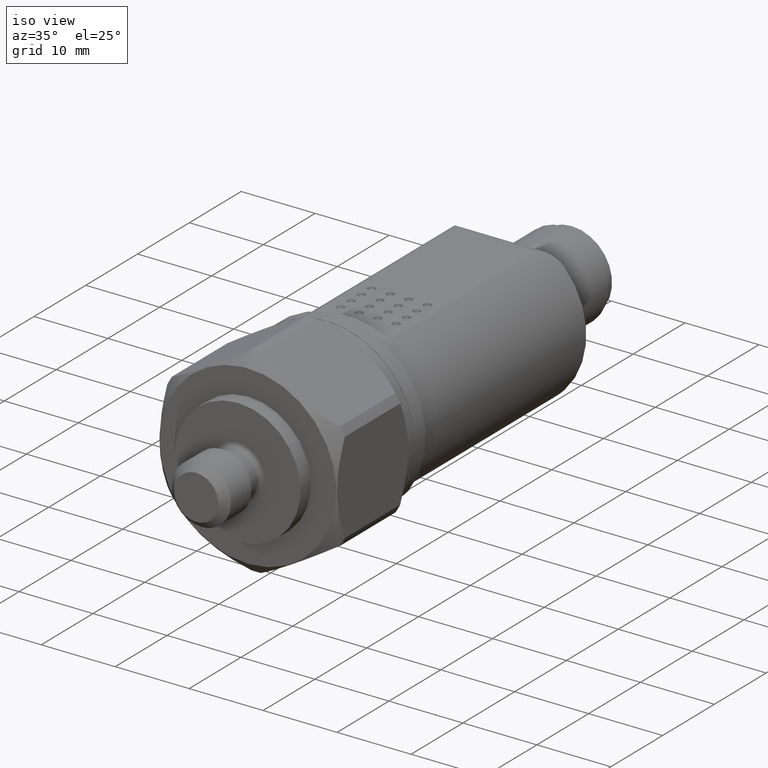
[diagram: clean part render]
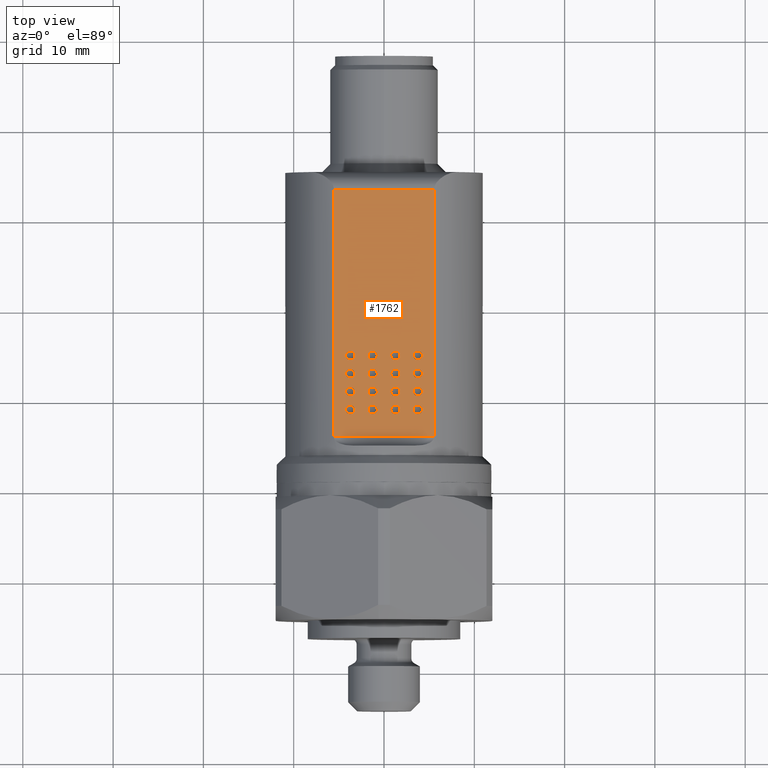
[diagram: tour spotlight — one face highlighted and labeled with its STEP entity id]
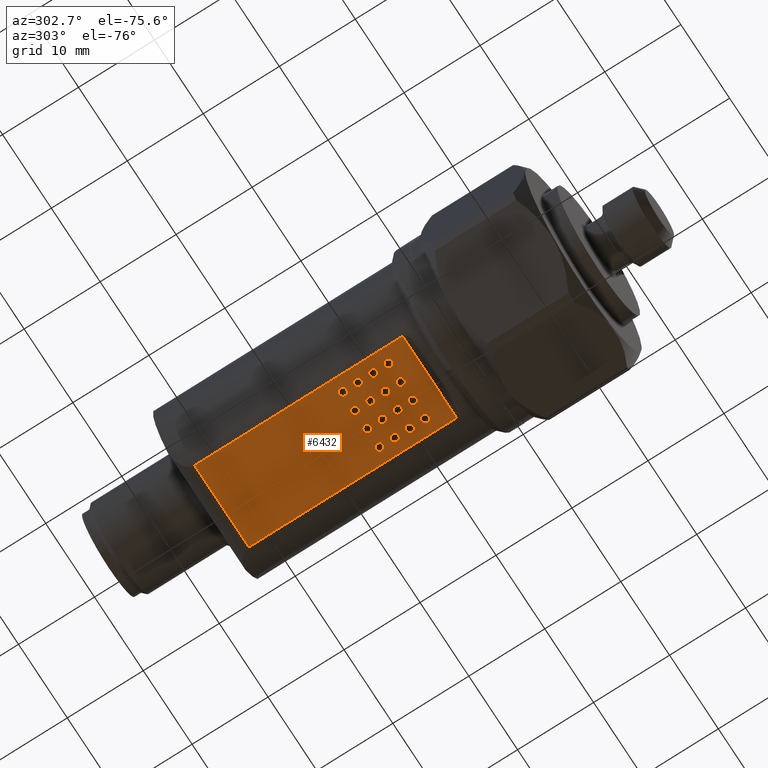
[diagram: tour spotlight — one face highlighted and labeled with its STEP entity id]
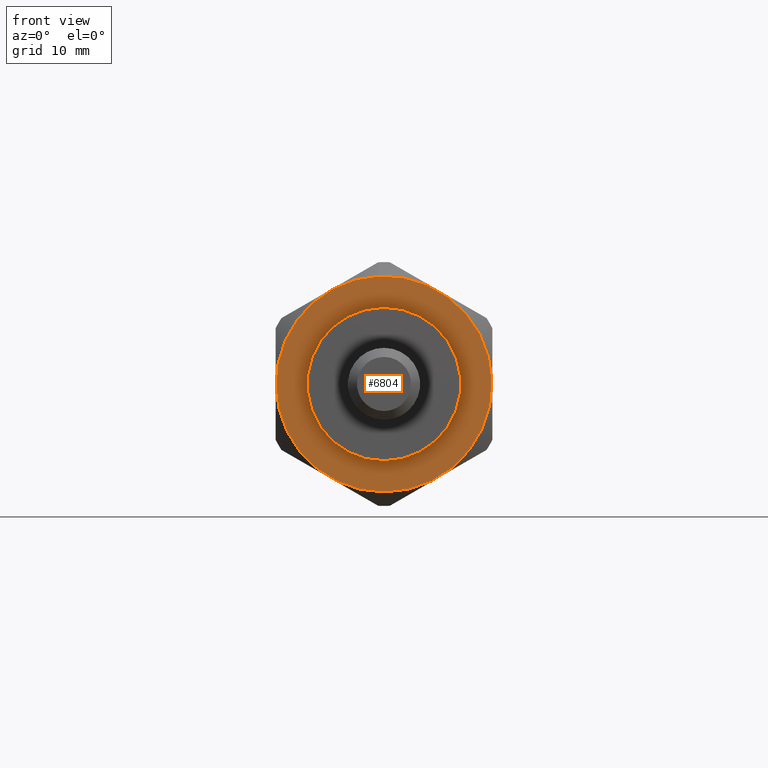
[diagram: tour spotlight — one face highlighted and labeled with its STEP entity id]
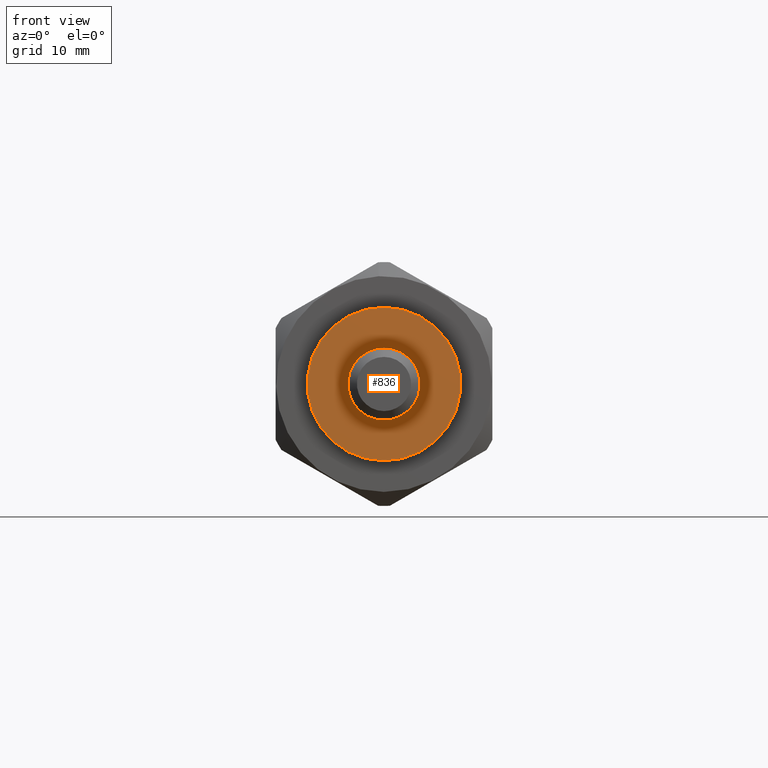
[diagram: tour spotlight — one face highlighted and labeled with its STEP entity id]
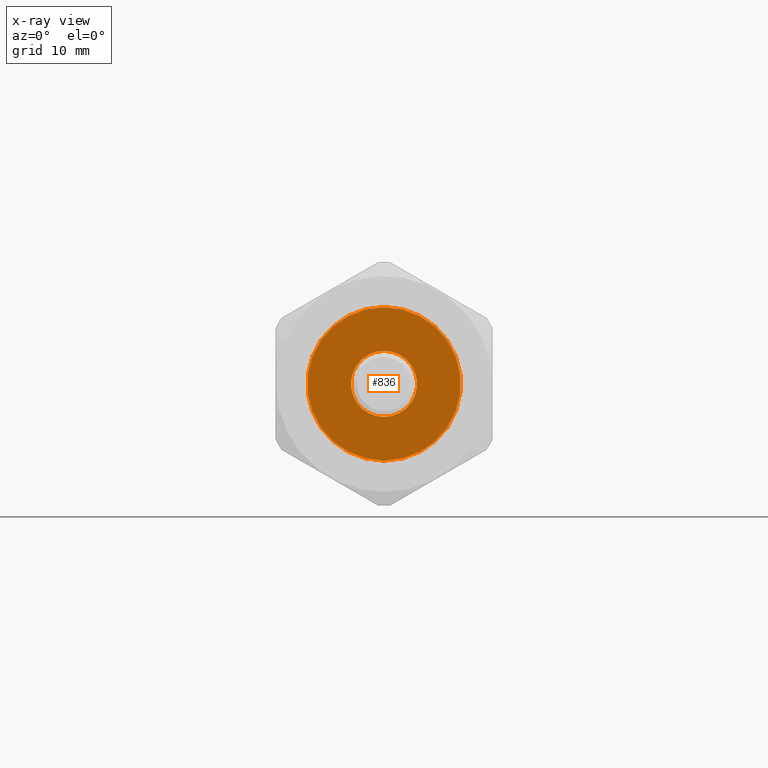
[diagram: x-ray of the same camera — body ghosted, this tour face saturated]
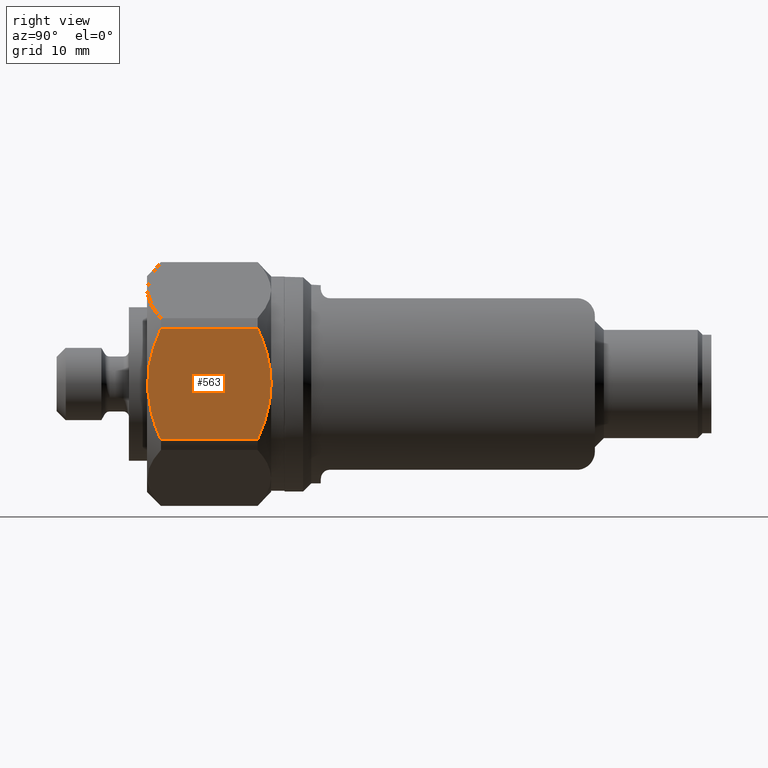
[diagram: tour spotlight — one face highlighted and labeled with its STEP entity id]
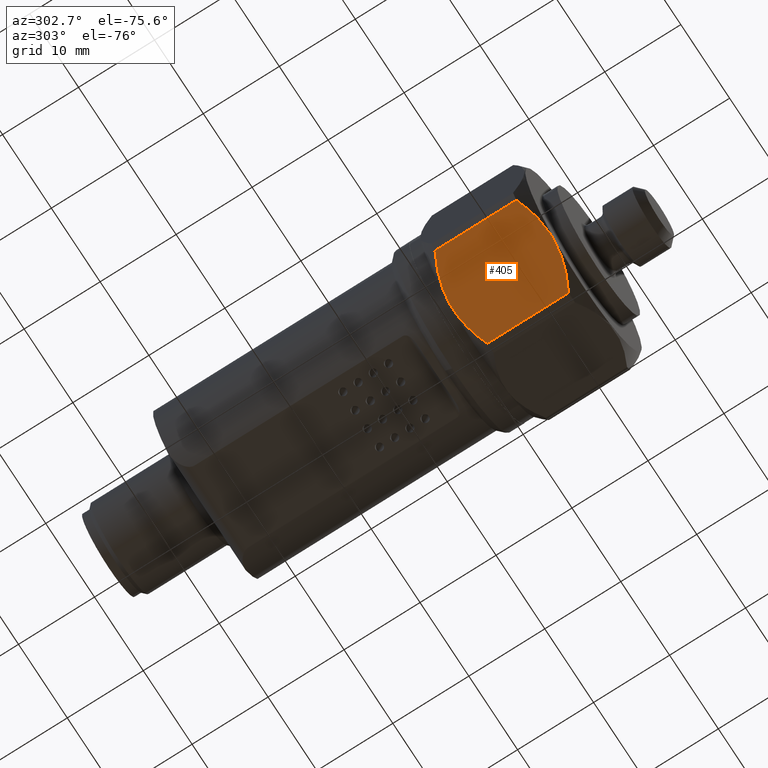
[diagram: tour spotlight — one face highlighted and labeled with its STEP entity id]
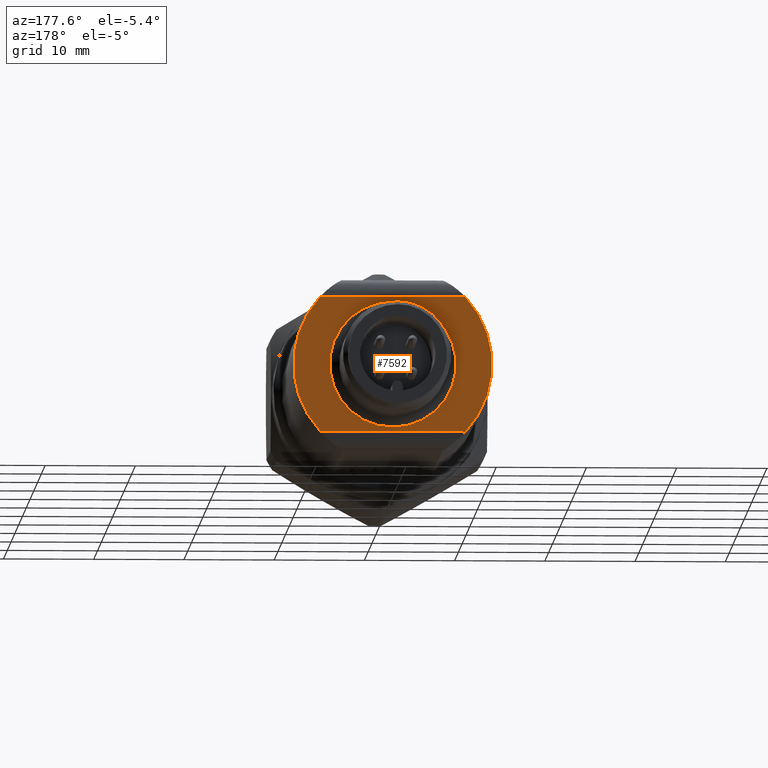
[diagram: tour spotlight — one face highlighted and labeled with its STEP entity id]
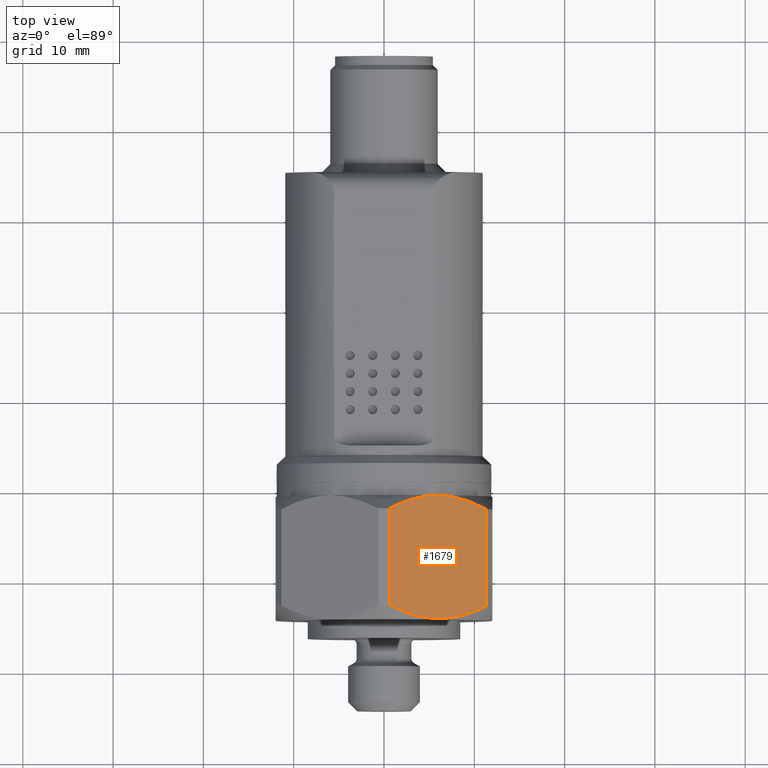
[diagram: tour spotlight — one face highlighted and labeled with its STEP entity id]
A machine part: a face-by-face anatomy tour. The part has 261 B-rep faces; the first image is the clean iso view, then the 8 largest visible faces are spotlighted one at a time (largest first), each with its STEP entity span.

Face 1 — top view, entity #1762. In plain terms, the highlighted planar face has unit normal (0, -0, 1).
Definition (entity closure, byte-faithful):
#1 = ORIENTED_EDGE ( 'NONE', *, *, #3840, .F. ) ;
#22 = AXIS2_PLACEMENT_3D ( 'NONE', #4638, #3497, #287 ) ;
#24 = DIRECTION ( 'NONE',  ( 0.000000000000000000, 0.000000000000000000, 1.000000000000000000 ) ) ;
#51 = CIRCLE ( 'NONE', #5858, 0.5000000000000000000 ) ;
#61 = ORIENTED_EDGE ( 'NONE', *, *, #7523, .T. ) ;
#81 = FACE_BOUND ( 'NONE', #3836, .T. ) ;
#121 = FACE_BOUND ( 'NONE', #6825, .T. ) ;
#193 = ORIENTED_EDGE ( 'NONE', *, *, #2128, .F. ) ;
#247 = PLANE ( 'NONE',  #6640 ) ;
#256 = VERTEX_POINT ( 'NONE', #6723 ) ;
#287 = DIRECTION ( 'NONE',  ( 1.000000000000000000, 0.000000000000000000, 0.000000000000000000 ) ) ;
#297 = EDGE_LOOP ( 'NONE', ( #3150 ) ) ;
#314 = EDGE_CURVE ( 'NONE', #1414, #1414, #5797, .T. ) ;
#568 = EDGE_LOOP ( 'NONE', ( #1920 ) ) ;
#692 = CIRCLE ( 'NONE', #2802, 0.5000000000000004441 ) ;
#732 = EDGE_LOOP ( 'NONE', ( #193 ) ) ;
#750 = EDGE_LOOP ( 'NONE', ( #6779, #826, #4217, #2660 ) ) ;
#753 = CARTESIAN_POINT ( 'NONE',  ( -4.250000000000000000, 8.899999999999998579, 9.500000000000000000 ) ) ;
#791 = VERTEX_POINT ( 'NONE', #2104 ) ;
#814 = DIRECTION ( 'NONE',  ( -1.000000000000000000, 0.000000000000000000, 0.000000000000000000 ) ) ;
#820 = CARTESIAN_POINT ( 'NONE',  ( 11.95100000000000051, 35.25000000000000000, 9.500000000000000000 ) ) ;
#826 = ORIENTED_EDGE ( 'NONE', *, *, #5332, .T. ) ;
#831 = CARTESIAN_POINT ( 'NONE',  ( -4.250000000000000000, 10.90000000000000036, 9.500000000000000000 ) ) ;
#861 = EDGE_CURVE ( 'NONE', #2572, #2572, #7679, .T. ) ;
#872 = VERTEX_POINT ( 'NONE', #3384 ) ;
#907 = CARTESIAN_POINT ( 'NONE',  ( 1.750000000000000000, 8.899999999999998579, 9.500000000000000000 ) ) ;
#975 = EDGE_CURVE ( 'NONE', #791, #791, #692, .T. ) ;
#976 = CIRCLE ( 'NONE', #6772, 0.5000000000000000000 ) ;
#1072 = CARTESIAN_POINT ( 'NONE',  ( -4.250000000000000000, 12.89999999999999858, 9.500000000000000000 ) ) ;
#1113 = CIRCLE ( 'NONE', #3744, 0.5000000000000004441 ) ;
#1139 = CIRCLE ( 'NONE', #6931, 0.5000000000000000000 ) ;
#1214 = CARTESIAN_POINT ( 'NONE',  ( -5.545268253204729270, -15.43046141069414112, 9.500000000000000000 ) ) ;
#1250 = DIRECTION ( 'NONE',  ( 0.000000000000000000, 0.000000000000000000, 1.000000000000000000 ) ) ;
#1265 = ORIENTED_EDGE ( 'NONE', *, *, #6701, .F. ) ;
#1369 = FACE_BOUND ( 'NONE', #568, .T. ) ;
#1414 = VERTEX_POINT ( 'NONE', #831 ) ;
#1457 = CARTESIAN_POINT ( 'NONE',  ( 1.250000000000000000, 12.89999999999999858, 9.500000000000000000 ) ) ;
#1475 = AXIS2_PLACEMENT_3D ( 'NONE', #5024, #8043, #1823 ) ;
#1586 = VERTEX_POINT ( 'NONE', #4554 ) ;
#1597 = CIRCLE ( 'NONE', #2659, 0.5000000000000000000 ) ;
#1762 = ADVANCED_FACE ( 'NONE', ( #2096, #4591, #3293, #3375, #2682, #4633, #5211, #4677, #81, #7090, #121, #3875, #7640, #5132, #2601, #1369, #3962 ), #247, .T. ) ;
#1823 = DIRECTION ( 'NONE',  ( 1.000000000000000000, 0.000000000000000000, 0.000000000000000000 ) ) ;
#1862 = EDGE_CURVE ( 'NONE', #5220, #5220, #976, .T. ) ;
#1864 = CIRCLE ( 'NONE', #1475, 0.5000000000000000000 ) ;
#1884 = EDGE_CURVE ( 'NONE', #7138, #7138, #1113, .T. ) ;
#1920 = ORIENTED_EDGE ( 'NONE', *, *, #861, .T. ) ;
#1929 = CARTESIAN_POINT ( 'NONE',  ( 11.95100000000000051, 33.25000000000000000, 9.500000000000000000 ) ) ;
#2055 = DIRECTION ( 'NONE',  ( 0.000000000000000000, 0.000000000000000000, 1.000000000000000000 ) ) ;
#2075 = DIRECTION ( 'NONE',  ( 1.000000000000000000, 0.000000000000000000, 0.000000000000000000 ) ) ;
#2087 = EDGE_LOOP ( 'NONE', ( #61 ) ) ;
#2096 = FACE_BOUND ( 'NONE', #3274, .T. ) ;
#2104 = CARTESIAN_POINT ( 'NONE',  ( 4.250000000000000000, 8.899999999999998579, 9.500000000000000000 ) ) ;
#2128 = EDGE_CURVE ( 'NONE', #6596, #6596, #2694, .T. ) ;
#2141 = ORIENTED_EDGE ( 'NONE', *, *, #1884, .F. ) ;
#2158 = DIRECTION ( 'NONE',  ( 1.000000000000000000, 0.000000000000000000, 0.000000000000000000 ) ) ;
#2265 = CARTESIAN_POINT ( 'NONE',  ( 3.750000000000000000, 12.89999999999999858, 9.500000000000000000 ) ) ;
#2273 = DIRECTION ( 'NONE',  ( 0.000000000000000000, 0.000000000000000000, -1.000000000000000000 ) ) ;
#2312 = CARTESIAN_POINT ( 'NONE',  ( 1.750000000000000000, 10.90000000000000036, 9.500000000000000000 ) ) ;
#2364 = ORIENTED_EDGE ( 'NONE', *, *, #6955, .F. ) ;
#2540 = CIRCLE ( 'NONE', #3579, 0.5000000000000004441 ) ;
#2572 = VERTEX_POINT ( 'NONE', #753 ) ;
#2601 = FACE_BOUND ( 'NONE', #4015, .T. ) ;
#2626 = CARTESIAN_POINT ( 'NONE',  ( 1.250000000000000000, 8.899999999999998579, 9.500000000000000000 ) ) ;
#2634 = VERTEX_POINT ( 'NONE', #4958 ) ;
#2659 = AXIS2_PLACEMENT_3D ( 'NONE', #1457, #2737, #2075 ) ;
#2660 = ORIENTED_EDGE ( 'NONE', *, *, #6546, .T. ) ;
#2682 = FACE_BOUND ( 'NONE', #5339, .T. ) ;
#2694 = CIRCLE ( 'NONE', #4546, 0.5000000000000000000 ) ;
#2737 = DIRECTION ( 'NONE',  ( 0.000000000000000000, 0.000000000000000000, 1.000000000000000000 ) ) ;
#2743 = DIRECTION ( 'NONE',  ( 0.000000000000000000, 0.000000000000000000, 1.000000000000000000 ) ) ;
#2765 = CARTESIAN_POINT ( 'NONE',  ( 4.250000000000000000, 14.90000000000000036, 9.500000000000000000 ) ) ;
#2770 = EDGE_CURVE ( 'NONE', #4802, #4802, #51, .T. ) ;
#2802 = AXIS2_PLACEMENT_3D ( 'NONE', #5407, #3529, #4870 ) ;
#2933 = VERTEX_POINT ( 'NONE', #3500 ) ;
#2979 = DIRECTION ( 'NONE',  ( 1.000000000000000000, 0.000000000000000000, 0.000000000000000000 ) ) ;
#3150 = ORIENTED_EDGE ( 'NONE', *, *, #7458, .T. ) ;
#3188 = AXIS2_PLACEMENT_3D ( 'NONE', #3370, #2055, #7752 ) ;
#3194 = LINE ( 'NONE', #5838, #6883 ) ;
#3239 = CARTESIAN_POINT ( 'NONE',  ( -5.545268253204729270, 5.899999999999998579, 9.500000000000000000 ) ) ;
#3257 = DIRECTION ( 'NONE',  ( 0.000000000000000000, 1.000000000000000000, 0.000000000000000000 ) ) ;
#3274 = EDGE_LOOP ( 'NONE', ( #1 ) ) ;
#3285 = LINE ( 'NONE', #1929, #4057 ) ;
#3293 = FACE_BOUND ( 'NONE', #7790, .T. ) ;
#3311 = CARTESIAN_POINT ( 'NONE',  ( 1.250000000000000000, 14.90000000000000036, 9.500000000000000000 ) ) ;
#3335 = DIRECTION ( 'NONE',  ( 0.000000000000000000, -1.714718427654179878E-16, 1.000000000000000000 ) ) ;
#3353 = CARTESIAN_POINT ( 'NONE',  ( -1.250000000000000000, 12.89999999999999858, 9.500000000000000000 ) ) ;
#3370 = CARTESIAN_POINT ( 'NONE',  ( 1.250000000000000000, 10.90000000000000036, 9.500000000000000000 ) ) ;
#3375 = FACE_BOUND ( 'NONE', #7449, .T. ) ;
#3384 = CARTESIAN_POINT ( 'NONE',  ( 1.750000000000000000, 12.89999999999999858, 9.500000000000000000 ) ) ;
#3406 = CARTESIAN_POINT ( 'NONE',  ( -3.750000000000000000, 8.899999999999998579, 9.500000000000000000 ) ) ;
#3423 = EDGE_CURVE ( 'NONE', #6247, #1586, #6901, .T. ) ;
#3466 = EDGE_LOOP ( 'NONE', ( #2141 ) ) ;
#3497 = DIRECTION ( 'NONE',  ( 0.000000000000000000, 0.000000000000000000, 1.000000000000000000 ) ) ;
#3500 = CARTESIAN_POINT ( 'NONE',  ( -0.7500000000000000000, 8.899999999999998579, 9.500000000000000000 ) ) ;
#3529 = DIRECTION ( 'NONE',  ( 0.000000000000000000, 0.000000000000000000, 1.000000000000000000 ) ) ;
#3579 = AXIS2_PLACEMENT_3D ( 'NONE', #2265, #7795, #7296 ) ;
#3582 = VERTEX_POINT ( 'NONE', #1072 ) ;
#3639 = DIRECTION ( 'NONE',  ( 0.000000000000000000, 1.000000000000000000, 0.000000000000000000 ) ) ;
#3744 = AXIS2_PLACEMENT_3D ( 'NONE', #5350, #2743, #6156 ) ;
#3815 = ORIENTED_EDGE ( 'NONE', *, *, #314, .T. ) ;
#3836 = EDGE_LOOP ( 'NONE', ( #6198 ) ) ;
#3840 = EDGE_CURVE ( 'NONE', #2933, #2933, #1139, .T. ) ;
#3875 = FACE_BOUND ( 'NONE', #732, .T. ) ;
#3962 = FACE_OUTER_BOUND ( 'NONE', #750, .T. ) ;
#3967 = LINE ( 'NONE', #4597, #4248 ) ;
#4015 = EDGE_LOOP ( 'NONE', ( #3815 ) ) ;
#4057 = VECTOR ( 'NONE', #4535, 1000.000000000000000 ) ;
#4064 = EDGE_LOOP ( 'NONE', ( #2364 ) ) ;
#4158 = DIRECTION ( 'NONE',  ( 0.000000000000000000, 0.000000000000000000, -1.000000000000000000 ) ) ;
#4217 = ORIENTED_EDGE ( 'NONE', *, *, #3423, .F. ) ;
#4220 = CARTESIAN_POINT ( 'NONE',  ( -3.750000000000000000, 10.90000000000000036, 9.500000000000000000 ) ) ;
#4248 = VECTOR ( 'NONE', #3257, 1000.000000000000000 ) ;
#4303 = VERTEX_POINT ( 'NONE', #7518 ) ;
#4341 = VERTEX_POINT ( 'NONE', #5014 ) ;
#4526 = CIRCLE ( 'NONE', #4931, 0.5000000000000004441 ) ;
#4535 = DIRECTION ( 'NONE',  ( -1.000000000000000000, 0.000000000000000000, 0.000000000000000000 ) ) ;
#4546 = AXIS2_PLACEMENT_3D ( 'NONE', #3311, #5927, #5190 ) ;
#4554 = CARTESIAN_POINT ( 'NONE',  ( -5.545268253204729270, 33.25000000000000000, 9.500000000000000000 ) ) ;
#4591 = FACE_BOUND ( 'NONE', #7414, .T. ) ;
#4597 = CARTESIAN_POINT ( 'NONE',  ( 5.545268253204729270, -15.43046141069414112, 9.500000000000000000 ) ) ;
#4633 = FACE_BOUND ( 'NONE', #6649, .T. ) ;
#4634 = ORIENTED_EDGE ( 'NONE', *, *, #5894, .F. ) ;
#4638 = CARTESIAN_POINT ( 'NONE',  ( 3.750000000000000000, 10.90000000000000036, 9.500000000000000000 ) ) ;
#4643 = CARTESIAN_POINT ( 'NONE',  ( -0.7500000000000000000, 14.90000000000000036, 9.500000000000000000 ) ) ;
#4646 = CIRCLE ( 'NONE', #3188, 0.5000000000000000000 ) ;
#4677 = FACE_BOUND ( 'NONE', #3466, .T. ) ;
#4753 = ORIENTED_EDGE ( 'NONE', *, *, #7722, .F. ) ;
#4802 = VERTEX_POINT ( 'NONE', #907 ) ;
#4829 = VECTOR ( 'NONE', #3639, 1000.000000000000000 ) ;
#4870 = DIRECTION ( 'NONE',  ( 1.000000000000000000, 0.000000000000000000, 0.000000000000000000 ) ) ;
#4886 = CARTESIAN_POINT ( 'NONE',  ( -4.250000000000000000, 14.90000000000000036, 9.500000000000000000 ) ) ;
#4891 = DIRECTION ( 'NONE',  ( -1.000000000000000000, 0.000000000000000000, 0.000000000000000000 ) ) ;
#4931 = AXIS2_PLACEMENT_3D ( 'NONE', #7860, #8021, #7276 ) ;
#4958 = CARTESIAN_POINT ( 'NONE',  ( 5.545268253204729270, 33.25000000000000000, 9.500000000000000000 ) ) ;
#5014 = CARTESIAN_POINT ( 'NONE',  ( 4.250000000000000000, 10.90000000000000036, 9.500000000000000000 ) ) ;
#5024 = CARTESIAN_POINT ( 'NONE',  ( -1.250000000000000000, 10.90000000000000036, 9.500000000000000000 ) ) ;
#5053 = VERTEX_POINT ( 'NONE', #4886 ) ;
#5072 = CIRCLE ( 'NONE', #5464, 0.5000000000000000000 ) ;
#5132 = FACE_BOUND ( 'NONE', #2087, .T. ) ;
#5190 = DIRECTION ( 'NONE',  ( 1.000000000000000000, 0.000000000000000000, 0.000000000000000000 ) ) ;
#5211 = FACE_BOUND ( 'NONE', #7089, .T. ) ;
#5220 = VERTEX_POINT ( 'NONE', #4643 ) ;
#5332 = EDGE_CURVE ( 'NONE', #2634, #1586, #3285, .T. ) ;
#5339 = EDGE_LOOP ( 'NONE', ( #6334 ) ) ;
#5350 = CARTESIAN_POINT ( 'NONE',  ( 3.750000000000000000, 14.90000000000000036, 9.500000000000000000 ) ) ;
#5407 = CARTESIAN_POINT ( 'NONE',  ( 3.750000000000000000, 8.899999999999998579, 9.500000000000000000 ) ) ;
#5464 = AXIS2_PLACEMENT_3D ( 'NONE', #3353, #6490, #6379 ) ;
#5716 = AXIS2_PLACEMENT_3D ( 'NONE', #6053, #4158, #7360 ) ;
#5720 = DIRECTION ( 'NONE',  ( 1.000000000000000000, 0.000000000000000000, 0.000000000000000000 ) ) ;
#5773 = DIRECTION ( 'NONE',  ( 1.000000000000000000, 0.000000000000000000, 0.000000000000000000 ) ) ;
#5797 = CIRCLE ( 'NONE', #7513, 0.5000000000000004441 ) ;
#5837 = CIRCLE ( 'NONE', #22, 0.5000000000000004441 ) ;
#5838 = CARTESIAN_POINT ( 'NONE',  ( 5.545268253204729270, 5.899999999999998579, 9.500000000000000000 ) ) ;
#5858 = AXIS2_PLACEMENT_3D ( 'NONE', #2626, #24, #5773 ) ;
#5876 = ORIENTED_EDGE ( 'NONE', *, *, #6486, .F. ) ;
#5894 = EDGE_CURVE ( 'NONE', #7299, #7299, #4646, .T. ) ;
#5927 = DIRECTION ( 'NONE',  ( 0.000000000000000000, 0.000000000000000000, 1.000000000000000000 ) ) ;
#6053 = CARTESIAN_POINT ( 'NONE',  ( -3.750000000000000000, 14.90000000000000036, 9.500000000000000000 ) ) ;
#6153 = CARTESIAN_POINT ( 'NONE',  ( 4.250000000000000000, 12.89999999999999858, 9.500000000000000000 ) ) ;
#6156 = DIRECTION ( 'NONE',  ( 1.000000000000000000, 0.000000000000000000, 0.000000000000000000 ) ) ;
#6198 = ORIENTED_EDGE ( 'NONE', *, *, #7099, .F. ) ;
#6247 = VERTEX_POINT ( 'NONE', #3239 ) ;
#6334 = ORIENTED_EDGE ( 'NONE', *, *, #2770, .F. ) ;
#6379 = DIRECTION ( 'NONE',  ( 1.000000000000000000, 0.000000000000000000, 0.000000000000000000 ) ) ;
#6486 = EDGE_CURVE ( 'NONE', #872, #872, #1597, .T. ) ;
#6490 = DIRECTION ( 'NONE',  ( 0.000000000000000000, 0.000000000000000000, 1.000000000000000000 ) ) ;
#6546 = EDGE_CURVE ( 'NONE', #6247, #7393, #3194, .T. ) ;
#6596 = VERTEX_POINT ( 'NONE', #7255 ) ;
#6640 = AXIS2_PLACEMENT_3D ( 'NONE', #820, #3335, #7007 ) ;
#6649 = EDGE_LOOP ( 'NONE', ( #4634 ) ) ;
#6701 = EDGE_CURVE ( 'NONE', #256, #256, #1864, .T. ) ;
#6723 = CARTESIAN_POINT ( 'NONE',  ( -0.7500000000000000000, 10.90000000000000036, 9.500000000000000000 ) ) ;
#6772 = AXIS2_PLACEMENT_3D ( 'NONE', #6989, #7029, #2158 ) ;
#6779 = ORIENTED_EDGE ( 'NONE', *, *, #6853, .T. ) ;
#6825 = EDGE_LOOP ( 'NONE', ( #7053 ) ) ;
#6853 = EDGE_CURVE ( 'NONE', #7393, #2634, #3967, .T. ) ;
#6883 = VECTOR ( 'NONE', #5720, 1000.000000000000000 ) ;
#6901 = LINE ( 'NONE', #1214, #4829 ) ;
#6931 = AXIS2_PLACEMENT_3D ( 'NONE', #8162, #1250, #2979 ) ;
#6932 = CARTESIAN_POINT ( 'NONE',  ( 5.545268253204729270, 5.899999999999998579, 9.500000000000000000 ) ) ;
#6936 = ORIENTED_EDGE ( 'NONE', *, *, #1862, .F. ) ;
#6955 = EDGE_CURVE ( 'NONE', #4341, #4341, #5837, .T. ) ;
#6989 = CARTESIAN_POINT ( 'NONE',  ( -1.250000000000000000, 14.90000000000000036, 9.500000000000000000 ) ) ;
#7007 = DIRECTION ( 'NONE',  ( 0.000000000000000000, -1.000000000000000000, -1.714718427654179878E-16 ) ) ;
#7029 = DIRECTION ( 'NONE',  ( 0.000000000000000000, 0.000000000000000000, 1.000000000000000000 ) ) ;
#7053 = ORIENTED_EDGE ( 'NONE', *, *, #975, .F. ) ;
#7089 = EDGE_LOOP ( 'NONE', ( #5876 ) ) ;
#7090 = FACE_BOUND ( 'NONE', #4064, .T. ) ;
#7099 = EDGE_CURVE ( 'NONE', #7434, #7434, #2540, .T. ) ;
#7138 = VERTEX_POINT ( 'NONE', #2765 ) ;
#7146 = AXIS2_PLACEMENT_3D ( 'NONE', #3406, #7751, #814 ) ;
#7255 = CARTESIAN_POINT ( 'NONE',  ( 1.750000000000000000, 14.90000000000000036, 9.500000000000000000 ) ) ;
#7276 = DIRECTION ( 'NONE',  ( -1.000000000000000000, 0.000000000000000000, 0.000000000000000000 ) ) ;
#7296 = DIRECTION ( 'NONE',  ( 1.000000000000000000, 0.000000000000000000, 0.000000000000000000 ) ) ;
#7299 = VERTEX_POINT ( 'NONE', #2312 ) ;
#7360 = DIRECTION ( 'NONE',  ( -1.000000000000000000, 0.000000000000000000, 0.000000000000000000 ) ) ;
#7393 = VERTEX_POINT ( 'NONE', #6932 ) ;
#7414 = EDGE_LOOP ( 'NONE', ( #1265 ) ) ;
#7422 = CIRCLE ( 'NONE', #5716, 0.5000000000000004441 ) ;
#7434 = VERTEX_POINT ( 'NONE', #6153 ) ;
#7449 = EDGE_LOOP ( 'NONE', ( #6936 ) ) ;
#7458 = EDGE_CURVE ( 'NONE', #5053, #5053, #7422, .T. ) ;
#7513 = AXIS2_PLACEMENT_3D ( 'NONE', #4220, #2273, #4891 ) ;
#7518 = CARTESIAN_POINT ( 'NONE',  ( -0.7500000000000000000, 12.89999999999999858, 9.500000000000000000 ) ) ;
#7523 = EDGE_CURVE ( 'NONE', #3582, #3582, #4526, .T. ) ;
#7640 = FACE_BOUND ( 'NONE', #297, .T. ) ;
#7679 = CIRCLE ( 'NONE', #7146, 0.5000000000000004441 ) ;
#7722 = EDGE_CURVE ( 'NONE', #4303, #4303, #5072, .T. ) ;
#7751 = DIRECTION ( 'NONE',  ( 0.000000000000000000, 0.000000000000000000, -1.000000000000000000 ) ) ;
#7752 = DIRECTION ( 'NONE',  ( 1.000000000000000000, 0.000000000000000000, 0.000000000000000000 ) ) ;
#7790 = EDGE_LOOP ( 'NONE', ( #4753 ) ) ;
#7795 = DIRECTION ( 'NONE',  ( 0.000000000000000000, 0.000000000000000000, 1.000000000000000000 ) ) ;
#7860 = CARTESIAN_POINT ( 'NONE',  ( -3.750000000000000000, 12.89999999999999858, 9.500000000000000000 ) ) ;
#8021 = DIRECTION ( 'NONE',  ( 0.000000000000000000, 0.000000000000000000, -1.000000000000000000 ) ) ;
#8043 = DIRECTION ( 'NONE',  ( 0.000000000000000000, 0.000000000000000000, 1.000000000000000000 ) ) ;
#8162 = CARTESIAN_POINT ( 'NONE',  ( -1.250000000000000000, 8.899999999999998579, 9.500000000000000000 ) ) ;

Face 2 — auxiliary view, entity #6432. In plain terms, the highlighted planar face has unit normal (0, -0, -1).
Definition (entity closure, byte-faithful):
#32 = CIRCLE ( 'NONE', #5977, 0.5000000000000004441 ) ;
#36 = DIRECTION ( 'NONE',  ( 1.000000000000000000, 0.000000000000000000, 0.000000000000000000 ) ) ;
#161 = DIRECTION ( 'NONE',  ( 1.000000000000000000, 0.000000000000000000, 0.000000000000000000 ) ) ;
#170 = VERTEX_POINT ( 'NONE', #2693 ) ;
#332 = CARTESIAN_POINT ( 'NONE',  ( 1.750000000000000000, 14.90000000000000036, -9.500000000000000000 ) ) ;
#337 = EDGE_CURVE ( 'NONE', #1451, #1451, #3954, .T. ) ;
#377 = VERTEX_POINT ( 'NONE', #4088 ) ;
#396 = EDGE_LOOP ( 'NONE', ( #1074 ) ) ;
#407 = DIRECTION ( 'NONE',  ( 0.000000000000000000, 1.000000000000000000, 0.000000000000000000 ) ) ;
#470 = FACE_BOUND ( 'NONE', #3748, .T. ) ;
#501 = CARTESIAN_POINT ( 'NONE',  ( -3.750000000000000000, 8.899999999999998579, -9.500000000000000000 ) ) ;
#575 = CARTESIAN_POINT ( 'NONE',  ( -3.750000000000000000, 12.89999999999999858, -9.500000000000000000 ) ) ;
#606 = CARTESIAN_POINT ( 'NONE',  ( 5.545268253204729270, 5.899999999999998579, -9.500000000000000000 ) ) ;
#623 = DIRECTION ( 'NONE',  ( 0.000000000000000000, 1.000000000000000000, 0.000000000000000000 ) ) ;
#699 = EDGE_CURVE ( 'NONE', #5105, #2839, #1766, .T. ) ;
#768 = EDGE_CURVE ( 'NONE', #2645, #2645, #32, .T. ) ;
#837 = AXIS2_PLACEMENT_3D ( 'NONE', #6396, #4502, #161 ) ;
#845 = EDGE_CURVE ( 'NONE', #6331, #6331, #4397, .T. ) ;
#935 = DIRECTION ( 'NONE',  ( 1.000000000000000000, 0.000000000000000000, 0.000000000000000000 ) ) ;
#1074 = ORIENTED_EDGE ( 'NONE', *, *, #1760, .T. ) ;
#1075 = AXIS2_PLACEMENT_3D ( 'NONE', #3691, #1182, #3083 ) ;
#1105 = AXIS2_PLACEMENT_3D ( 'NONE', #501, #1211, #6776 ) ;
#1182 = DIRECTION ( 'NONE',  ( 0.000000000000000000, 0.000000000000000000, 1.000000000000000000 ) ) ;
#1199 = DIRECTION ( 'NONE',  ( 0.000000000000000000, 0.000000000000000000, 1.000000000000000000 ) ) ;
#1211 = DIRECTION ( 'NONE',  ( 0.000000000000000000, 0.000000000000000000, -1.000000000000000000 ) ) ;
#1267 = FACE_BOUND ( 'NONE', #2978, .T. ) ;
#1295 = EDGE_CURVE ( 'NONE', #7685, #7685, #2946, .T. ) ;
#1320 = EDGE_LOOP ( 'NONE', ( #5770, #7677, #3851, #6725 ) ) ;
#1321 = AXIS2_PLACEMENT_3D ( 'NONE', #5544, #5507, #4932 ) ;
#1348 = AXIS2_PLACEMENT_3D ( 'NONE', #3646, #6866, #1787 ) ;
#1405 = EDGE_CURVE ( 'NONE', #7460, #2839, #5311, .T. ) ;
#1431 = DIRECTION ( 'NONE',  ( 0.000000000000000000, 0.000000000000000000, 1.000000000000000000 ) ) ;
#1451 = VERTEX_POINT ( 'NONE', #4511 ) ;
#1460 = CARTESIAN_POINT ( 'NONE',  ( 1.250000000000000000, 12.89999999999999858, -9.500000000000000000 ) ) ;
#1480 = EDGE_LOOP ( 'NONE', ( #2305 ) ) ;
#1521 = CIRCLE ( 'NONE', #4573, 0.5000000000000004441 ) ;
#1532 = CIRCLE ( 'NONE', #3128, 0.5000000000000000000 ) ;
#1559 = DIRECTION ( 'NONE',  ( 0.000000000000000000, 0.000000000000000000, -1.000000000000000000 ) ) ;
#1664 = EDGE_LOOP ( 'NONE', ( #5787 ) ) ;
#1760 = EDGE_CURVE ( 'NONE', #170, #170, #7948, .T. ) ;
#1766 = LINE ( 'NONE', #4880, #4496 ) ;
#1782 = CARTESIAN_POINT ( 'NONE',  ( 3.750000000000000000, 8.899999999999998579, -9.500000000000000000 ) ) ;
#1787 = DIRECTION ( 'NONE',  ( 0.000000000000000000, -1.000000000000000000, 1.714718427654179878E-16 ) ) ;
#1804 = DIRECTION ( 'NONE',  ( -1.000000000000000000, 0.000000000000000000, 0.000000000000000000 ) ) ;
#1843 = CARTESIAN_POINT ( 'NONE',  ( -1.250000000000000000, 14.90000000000000036, -9.500000000000000000 ) ) ;
#1852 = EDGE_LOOP ( 'NONE', ( #3358 ) ) ;
#1948 = EDGE_CURVE ( 'NONE', #5105, #7612, #6612, .T. ) ;
#1969 = DIRECTION ( 'NONE',  ( 1.000000000000000000, 0.000000000000000000, 0.000000000000000000 ) ) ;
#2061 = EDGE_LOOP ( 'NONE', ( #4071 ) ) ;
#2077 = DIRECTION ( 'NONE',  ( 0.000000000000000000, 0.000000000000000000, 1.000000000000000000 ) ) ;
#2081 = CIRCLE ( 'NONE', #3794, 0.5000000000000004441 ) ;
#2144 = CARTESIAN_POINT ( 'NONE',  ( 4.250000000000000000, 8.899999999999998579, -9.500000000000000000 ) ) ;
#2178 = CARTESIAN_POINT ( 'NONE',  ( -3.750000000000000000, 14.90000000000000036, -9.500000000000000000 ) ) ;
#2187 = VERTEX_POINT ( 'NONE', #3456 ) ;
#2193 = DIRECTION ( 'NONE',  ( 1.000000000000000000, 0.000000000000000000, 0.000000000000000000 ) ) ;
#2262 = EDGE_CURVE ( 'NONE', #7839, #7839, #3594, .T. ) ;
#2297 = EDGE_CURVE ( 'NONE', #4054, #4054, #4671, .T. ) ;
#2305 = ORIENTED_EDGE ( 'NONE', *, *, #4501, .T. ) ;
#2361 = AXIS2_PLACEMENT_3D ( 'NONE', #2816, #7843, #2193 ) ;
#2401 = CARTESIAN_POINT ( 'NONE',  ( 1.250000000000000000, 14.90000000000000036, -9.500000000000000000 ) ) ;
#2403 = AXIS2_PLACEMENT_3D ( 'NONE', #3671, #5456, #4924 ) ;
#2431 = DIRECTION ( 'NONE',  ( -1.000000000000000000, 0.000000000000000000, 0.000000000000000000 ) ) ;
#2452 = FACE_BOUND ( 'NONE', #396, .T. ) ;
#2645 = VERTEX_POINT ( 'NONE', #5140 ) ;
#2675 = AXIS2_PLACEMENT_3D ( 'NONE', #3766, #8130, #4431 ) ;
#2693 = CARTESIAN_POINT ( 'NONE',  ( -0.7500000000000000000, 12.89999999999999858, -9.500000000000000000 ) ) ;
#2816 = CARTESIAN_POINT ( 'NONE',  ( 1.250000000000000000, 8.899999999999998579, -9.500000000000000000 ) ) ;
#2818 = VECTOR ( 'NONE', #5394, 1000.000000000000000 ) ;
#2836 = CARTESIAN_POINT ( 'NONE',  ( 5.545268253204729270, 33.25000000000000000, -9.500000000000000000 ) ) ;
#2839 = VERTEX_POINT ( 'NONE', #7778 ) ;
#2946 = CIRCLE ( 'NONE', #5851, 0.5000000000000000000 ) ;
#2978 = EDGE_LOOP ( 'NONE', ( #3613 ) ) ;
#2998 = FACE_BOUND ( 'NONE', #6787, .T. ) ;
#3078 = AXIS2_PLACEMENT_3D ( 'NONE', #1843, #1199, #1969 ) ;
#3083 = DIRECTION ( 'NONE',  ( 1.000000000000000000, 0.000000000000000000, 0.000000000000000000 ) ) ;
#3104 = DIRECTION ( 'NONE',  ( 0.000000000000000000, 0.000000000000000000, 1.000000000000000000 ) ) ;
#3128 = AXIS2_PLACEMENT_3D ( 'NONE', #2401, #6294, #6368 ) ;
#3208 = EDGE_CURVE ( 'NONE', #2187, #2187, #5864, .T. ) ;
#3301 = CARTESIAN_POINT ( 'NONE',  ( -0.7500000000000000000, 8.899999999999998579, -9.500000000000000000 ) ) ;
#3358 = ORIENTED_EDGE ( 'NONE', *, *, #5663, .T. ) ;
#3363 = DIRECTION ( 'NONE',  ( 1.000000000000000000, 0.000000000000000000, 0.000000000000000000 ) ) ;
#3381 = ORIENTED_EDGE ( 'NONE', *, *, #5224, .F. ) ;
#3420 = VERTEX_POINT ( 'NONE', #6073 ) ;
#3456 = CARTESIAN_POINT ( 'NONE',  ( 1.750000000000000000, 12.89999999999999858, -9.500000000000000000 ) ) ;
#3572 = CARTESIAN_POINT ( 'NONE',  ( 3.750000000000000000, 10.90000000000000036, -9.500000000000000000 ) ) ;
#3594 = CIRCLE ( 'NONE', #2675, 0.5000000000000004441 ) ;
#3613 = ORIENTED_EDGE ( 'NONE', *, *, #768, .F. ) ;
#3646 = CARTESIAN_POINT ( 'NONE',  ( 11.95100000000000051, 35.25000000000000000, -9.500000000000000000 ) ) ;
#3671 = CARTESIAN_POINT ( 'NONE',  ( 3.750000000000000000, 12.89999999999999858, -9.500000000000000000 ) ) ;
#3673 = CARTESIAN_POINT ( 'NONE',  ( 5.545268253204729270, -15.43046141069414112, -9.500000000000000000 ) ) ;
#3687 = DIRECTION ( 'NONE',  ( 1.000000000000000000, 0.000000000000000000, 0.000000000000000000 ) ) ;
#3690 = ORIENTED_EDGE ( 'NONE', *, *, #2262, .F. ) ;
#3691 = CARTESIAN_POINT ( 'NONE',  ( 1.250000000000000000, 10.90000000000000036, -9.500000000000000000 ) ) ;
#3748 = EDGE_LOOP ( 'NONE', ( #7745 ) ) ;
#3766 = CARTESIAN_POINT ( 'NONE',  ( -3.750000000000000000, 10.90000000000000036, -9.500000000000000000 ) ) ;
#3794 = AXIS2_PLACEMENT_3D ( 'NONE', #1782, #4316, #3687 ) ;
#3851 = ORIENTED_EDGE ( 'NONE', *, *, #699, .T. ) ;
#3859 = EDGE_CURVE ( 'NONE', #7612, #7460, #5666, .T. ) ;
#3954 = CIRCLE ( 'NONE', #1321, 0.5000000000000000000 ) ;
#4013 = VERTEX_POINT ( 'NONE', #5421 ) ;
#4023 = ORIENTED_EDGE ( 'NONE', *, *, #5161, .T. ) ;
#4054 = VERTEX_POINT ( 'NONE', #6561 ) ;
#4071 = ORIENTED_EDGE ( 'NONE', *, *, #4582, .T. ) ;
#4088 = CARTESIAN_POINT ( 'NONE',  ( 1.750000000000000000, 8.899999999999998579, -9.500000000000000000 ) ) ;
#4134 = VERTEX_POINT ( 'NONE', #2144 ) ;
#4207 = ORIENTED_EDGE ( 'NONE', *, *, #1295, .T. ) ;
#4254 = CARTESIAN_POINT ( 'NONE',  ( 4.250000000000000000, 12.89999999999999858, -9.500000000000000000 ) ) ;
#4276 = FACE_BOUND ( 'NONE', #1664, .T. ) ;
#4316 = DIRECTION ( 'NONE',  ( 0.000000000000000000, 0.000000000000000000, 1.000000000000000000 ) ) ;
#4357 = FACE_OUTER_BOUND ( 'NONE', #1320, .T. ) ;
#4397 = CIRCLE ( 'NONE', #3078, 0.5000000000000000000 ) ;
#4400 = FACE_BOUND ( 'NONE', #1480, .T. ) ;
#4431 = DIRECTION ( 'NONE',  ( -1.000000000000000000, 0.000000000000000000, 0.000000000000000000 ) ) ;
#4496 = VECTOR ( 'NONE', #407, 1000.000000000000000 ) ;
#4501 = EDGE_CURVE ( 'NONE', #4723, #4723, #1532, .T. ) ;
#4502 = DIRECTION ( 'NONE',  ( 0.000000000000000000, 0.000000000000000000, 1.000000000000000000 ) ) ;
#4511 = CARTESIAN_POINT ( 'NONE',  ( -0.7500000000000000000, 10.90000000000000036, -9.500000000000000000 ) ) ;
#4573 = AXIS2_PLACEMENT_3D ( 'NONE', #6154, #3104, #36 ) ;
#4582 = EDGE_CURVE ( 'NONE', #4134, #4134, #2081, .T. ) ;
#4590 = CIRCLE ( 'NONE', #6687, 0.5000000000000004441 ) ;
#4609 = DIRECTION ( 'NONE',  ( 1.000000000000000000, 0.000000000000000000, 0.000000000000000000 ) ) ;
#4671 = CIRCLE ( 'NONE', #1105, 0.5000000000000004441 ) ;
#4723 = VERTEX_POINT ( 'NONE', #332 ) ;
#4781 = CARTESIAN_POINT ( 'NONE',  ( 11.95100000000000051, 33.25000000000000000, -9.500000000000000000 ) ) ;
#4880 = CARTESIAN_POINT ( 'NONE',  ( -5.545268253204729270, -15.43046141069414112, -9.500000000000000000 ) ) ;
#4903 = FACE_BOUND ( 'NONE', #6762, .T. ) ;
#4911 = EDGE_CURVE ( 'NONE', #5381, #5381, #1521, .T. ) ;
#4924 = DIRECTION ( 'NONE',  ( 1.000000000000000000, 0.000000000000000000, 0.000000000000000000 ) ) ;
#4932 = DIRECTION ( 'NONE',  ( 1.000000000000000000, 0.000000000000000000, 0.000000000000000000 ) ) ;
#4946 = PLANE ( 'NONE',  #1348 ) ;
#4990 = FACE_BOUND ( 'NONE', #2061, .T. ) ;
#5105 = VERTEX_POINT ( 'NONE', #7087 ) ;
#5140 = CARTESIAN_POINT ( 'NONE',  ( -4.250000000000000000, 12.89999999999999858, -9.500000000000000000 ) ) ;
#5161 = EDGE_CURVE ( 'NONE', #7879, #7879, #8131, .T. ) ;
#5171 = CIRCLE ( 'NONE', #1075, 0.5000000000000000000 ) ;
#5224 = EDGE_CURVE ( 'NONE', #4013, #4013, #4590, .T. ) ;
#5299 = EDGE_LOOP ( 'NONE', ( #7347 ) ) ;
#5311 = LINE ( 'NONE', #4781, #8078 ) ;
#5338 = CARTESIAN_POINT ( 'NONE',  ( 4.250000000000000000, 10.90000000000000036, -9.500000000000000000 ) ) ;
#5381 = VERTEX_POINT ( 'NONE', #6523 ) ;
#5394 = DIRECTION ( 'NONE',  ( 1.000000000000000000, 0.000000000000000000, 0.000000000000000000 ) ) ;
#5421 = CARTESIAN_POINT ( 'NONE',  ( -4.250000000000000000, 14.90000000000000036, -9.500000000000000000 ) ) ;
#5448 = ORIENTED_EDGE ( 'NONE', *, *, #6362, .T. ) ;
#5456 = DIRECTION ( 'NONE',  ( 0.000000000000000000, 0.000000000000000000, 1.000000000000000000 ) ) ;
#5507 = DIRECTION ( 'NONE',  ( 0.000000000000000000, 0.000000000000000000, 1.000000000000000000 ) ) ;
#5520 = FACE_BOUND ( 'NONE', #5299, .T. ) ;
#5544 = CARTESIAN_POINT ( 'NONE',  ( -1.250000000000000000, 10.90000000000000036, -9.500000000000000000 ) ) ;
#5632 = EDGE_LOOP ( 'NONE', ( #6716 ) ) ;
#5663 = EDGE_CURVE ( 'NONE', #377, #377, #6318, .T. ) ;
#5666 = LINE ( 'NONE', #3673, #7847 ) ;
#5770 = ORIENTED_EDGE ( 'NONE', *, *, #3859, .F. ) ;
#5787 = ORIENTED_EDGE ( 'NONE', *, *, #845, .T. ) ;
#5851 = AXIS2_PLACEMENT_3D ( 'NONE', #7077, #1431, #3363 ) ;
#5864 = CIRCLE ( 'NONE', #7585, 0.5000000000000000000 ) ;
#5889 = EDGE_LOOP ( 'NONE', ( #3381 ) ) ;
#5969 = CIRCLE ( 'NONE', #2403, 0.5000000000000004441 ) ;
#5977 = AXIS2_PLACEMENT_3D ( 'NONE', #575, #6928, #2431 ) ;
#6073 = CARTESIAN_POINT ( 'NONE',  ( 1.750000000000000000, 10.90000000000000036, -9.500000000000000000 ) ) ;
#6130 = FACE_BOUND ( 'NONE', #7940, .T. ) ;
#6150 = EDGE_LOOP ( 'NONE', ( #3690 ) ) ;
#6154 = CARTESIAN_POINT ( 'NONE',  ( 3.750000000000000000, 14.90000000000000036, -9.500000000000000000 ) ) ;
#6294 = DIRECTION ( 'NONE',  ( 0.000000000000000000, 0.000000000000000000, 1.000000000000000000 ) ) ;
#6318 = CIRCLE ( 'NONE', #2361, 0.5000000000000000000 ) ;
#6331 = VERTEX_POINT ( 'NONE', #7016 ) ;
#6362 = EDGE_CURVE ( 'NONE', #3420, #3420, #5171, .T. ) ;
#6368 = DIRECTION ( 'NONE',  ( 1.000000000000000000, 0.000000000000000000, 0.000000000000000000 ) ) ;
#6396 = CARTESIAN_POINT ( 'NONE',  ( -1.250000000000000000, 12.89999999999999858, -9.500000000000000000 ) ) ;
#6432 = ADVANCED_FACE ( 'NONE', ( #6130, #470, #2452, #4276, #7400, #2998, #5520, #8016, #4903, #6828, #4990, #4400, #6785, #1267, #7497, #7452, #4357 ), #4946, .T. ) ;
#6523 = CARTESIAN_POINT ( 'NONE',  ( 4.250000000000000000, 14.90000000000000036, -9.500000000000000000 ) ) ;
#6561 = CARTESIAN_POINT ( 'NONE',  ( -4.250000000000000000, 8.899999999999998579, -9.500000000000000000 ) ) ;
#6572 = CARTESIAN_POINT ( 'NONE',  ( 5.545268253204729270, 5.899999999999998579, -9.500000000000000000 ) ) ;
#6612 = LINE ( 'NONE', #6572, #2818 ) ;
#6687 = AXIS2_PLACEMENT_3D ( 'NONE', #2178, #1559, #1804 ) ;
#6705 = DIRECTION ( 'NONE',  ( -1.000000000000000000, 0.000000000000000000, 0.000000000000000000 ) ) ;
#6716 = ORIENTED_EDGE ( 'NONE', *, *, #2297, .F. ) ;
#6725 = ORIENTED_EDGE ( 'NONE', *, *, #1405, .F. ) ;
#6762 = EDGE_LOOP ( 'NONE', ( #7819 ) ) ;
#6776 = DIRECTION ( 'NONE',  ( -1.000000000000000000, 0.000000000000000000, 0.000000000000000000 ) ) ;
#6785 = FACE_BOUND ( 'NONE', #5889, .T. ) ;
#6787 = EDGE_LOOP ( 'NONE', ( #5448 ) ) ;
#6811 = VERTEX_POINT ( 'NONE', #4254 ) ;
#6815 = EDGE_LOOP ( 'NONE', ( #8086 ) ) ;
#6828 = FACE_BOUND ( 'NONE', #6913, .T. ) ;
#6866 = DIRECTION ( 'NONE',  ( 0.000000000000000000, -1.714718427654179878E-16, -1.000000000000000000 ) ) ;
#6913 = EDGE_LOOP ( 'NONE', ( #4023 ) ) ;
#6928 = DIRECTION ( 'NONE',  ( 0.000000000000000000, 0.000000000000000000, -1.000000000000000000 ) ) ;
#7016 = CARTESIAN_POINT ( 'NONE',  ( -0.7500000000000000000, 14.90000000000000036, -9.500000000000000000 ) ) ;
#7077 = CARTESIAN_POINT ( 'NONE',  ( -1.250000000000000000, 8.899999999999998579, -9.500000000000000000 ) ) ;
#7087 = CARTESIAN_POINT ( 'NONE',  ( -5.545268253204729270, 5.899999999999998579, -9.500000000000000000 ) ) ;
#7151 = EDGE_CURVE ( 'NONE', #6811, #6811, #5969, .T. ) ;
#7332 = DIRECTION ( 'NONE',  ( 0.000000000000000000, 0.000000000000000000, 1.000000000000000000 ) ) ;
#7347 = ORIENTED_EDGE ( 'NONE', *, *, #3208, .T. ) ;
#7400 = FACE_BOUND ( 'NONE', #1852, .T. ) ;
#7452 = FACE_BOUND ( 'NONE', #5632, .T. ) ;
#7460 = VERTEX_POINT ( 'NONE', #2836 ) ;
#7497 = FACE_BOUND ( 'NONE', #6150, .T. ) ;
#7585 = AXIS2_PLACEMENT_3D ( 'NONE', #1460, #2077, #4609 ) ;
#7612 = VERTEX_POINT ( 'NONE', #606 ) ;
#7627 = AXIS2_PLACEMENT_3D ( 'NONE', #3572, #7332, #935 ) ;
#7677 = ORIENTED_EDGE ( 'NONE', *, *, #1948, .F. ) ;
#7685 = VERTEX_POINT ( 'NONE', #3301 ) ;
#7745 = ORIENTED_EDGE ( 'NONE', *, *, #337, .T. ) ;
#7778 = CARTESIAN_POINT ( 'NONE',  ( -5.545268253204729270, 33.25000000000000000, -9.500000000000000000 ) ) ;
#7819 = ORIENTED_EDGE ( 'NONE', *, *, #7151, .T. ) ;
#7839 = VERTEX_POINT ( 'NONE', #7917 ) ;
#7843 = DIRECTION ( 'NONE',  ( 0.000000000000000000, 0.000000000000000000, 1.000000000000000000 ) ) ;
#7847 = VECTOR ( 'NONE', #623, 1000.000000000000000 ) ;
#7879 = VERTEX_POINT ( 'NONE', #5338 ) ;
#7917 = CARTESIAN_POINT ( 'NONE',  ( -4.250000000000000000, 10.90000000000000036, -9.500000000000000000 ) ) ;
#7940 = EDGE_LOOP ( 'NONE', ( #4207 ) ) ;
#7948 = CIRCLE ( 'NONE', #837, 0.5000000000000000000 ) ;
#8016 = FACE_BOUND ( 'NONE', #6815, .T. ) ;
#8078 = VECTOR ( 'NONE', #6705, 1000.000000000000000 ) ;
#8086 = ORIENTED_EDGE ( 'NONE', *, *, #4911, .T. ) ;
#8130 = DIRECTION ( 'NONE',  ( 0.000000000000000000, 0.000000000000000000, -1.000000000000000000 ) ) ;
#8131 = CIRCLE ( 'NONE', #7627, 0.5000000000000004441 ) ;

Face 3 — front view, entity #6804. In plain terms, the highlighted planar face has unit normal (-0, 1, 0).
Definition (entity closure, byte-faithful):
#711 = CIRCLE ( 'NONE', #5201, 8.500000000000000000 ) ;
#1086 = DIRECTION ( 'NONE',  ( 0.000000000000000000, 0.000000000000000000, -1.000000000000000000 ) ) ;
#1494 = CIRCLE ( 'NONE', #2555, 11.95000000000000107 ) ;
#1715 = EDGE_LOOP ( 'NONE', ( #8099 ) ) ;
#1847 = VERTEX_POINT ( 'NONE', #4215 ) ;
#2033 = EDGE_CURVE ( 'NONE', #5459, #5459, #711, .T. ) ;
#2392 = DIRECTION ( 'NONE',  ( 0.000000000000000000, -1.000000000000000000, 0.000000000000000000 ) ) ;
#2555 = AXIS2_PLACEMENT_3D ( 'NONE', #6697, #7264, #1086 ) ;
#2794 = AXIS2_PLACEMENT_3D ( 'NONE', #7488, #6290, #4349 ) ;
#3688 = ORIENTED_EDGE ( 'NONE', *, *, #2033, .F. ) ;
#4215 = CARTESIAN_POINT ( 'NONE',  ( 0.000000000000000000, -14.34999999999999964, -11.95000000000000107 ) ) ;
#4349 = DIRECTION ( 'NONE',  ( 1.000000000000000000, 0.000000000000000000, 0.000000000000000000 ) ) ;
#4929 = DIRECTION ( 'NONE',  ( 0.000000000000000000, 0.000000000000000000, -1.000000000000000000 ) ) ;
#4979 = PLANE ( 'NONE',  #2794 ) ;
#5201 = AXIS2_PLACEMENT_3D ( 'NONE', #7522, #2392, #4929 ) ;
#5459 = VERTEX_POINT ( 'NONE', #6645 ) ;
#5591 = FACE_BOUND ( 'NONE', #7907, .T. ) ;
#6163 = FACE_OUTER_BOUND ( 'NONE', #1715, .T. ) ;
#6290 = DIRECTION ( 'NONE',  ( -0.000000000000000000, 1.000000000000000000, 0.000000000000000000 ) ) ;
#6645 = CARTESIAN_POINT ( 'NONE',  ( 0.000000000000000000, -14.34999999999999964, -8.500000000000000000 ) ) ;
#6697 = CARTESIAN_POINT ( 'NONE',  ( 0.000000000000000000, -14.34999999999999964, 0.000000000000000000 ) ) ;
#6804 = ADVANCED_FACE ( 'NONE', ( #5591, #6163 ), #4979, .F. ) ;
#7264 = DIRECTION ( 'NONE',  ( 0.000000000000000000, -1.000000000000000000, 0.000000000000000000 ) ) ;
#7488 = CARTESIAN_POINT ( 'NONE',  ( 8.500000000000000000, -14.34999999999999964, 0.000000000000000000 ) ) ;
#7522 = CARTESIAN_POINT ( 'NONE',  ( 0.000000000000000000, -14.34999999999999964, 0.000000000000000000 ) ) ;
#7907 = EDGE_LOOP ( 'NONE', ( #3688 ) ) ;
#7942 = EDGE_CURVE ( 'NONE', #1847, #1847, #1494, .T. ) ;
#8099 = ORIENTED_EDGE ( 'NONE', *, *, #7942, .T. ) ;

Face 4 — front view, entity #836. An x-ray twin of the same camera follows (body ghosted, this face saturated) — the face is partly hidden behind the body. In plain terms, the highlighted planar face has unit normal (0, -1, 0).
Definition (entity closure, byte-faithful):
#30 = FACE_BOUND ( 'NONE', #285, .T. ) ;
#58 = CIRCLE ( 'NONE', #189, 3.649999999999999911 ) ;
#189 = AXIS2_PLACEMENT_3D ( 'NONE', #4702, #1547, #6424 ) ;
#285 = EDGE_LOOP ( 'NONE', ( #2398 ) ) ;
#824 = AXIS2_PLACEMENT_3D ( 'NONE', #6228, #7474, #7603 ) ;
#836 = ADVANCED_FACE ( 'NONE', ( #30, #2558 ), #5089, .T. ) ;
#1547 = DIRECTION ( 'NONE',  ( 0.000000000000000000, 1.000000000000000000, 0.000000000000000000 ) ) ;
#2226 = VERTEX_POINT ( 'NONE', #7217 ) ;
#2398 = ORIENTED_EDGE ( 'NONE', *, *, #2928, .T. ) ;
#2558 = FACE_OUTER_BOUND ( 'NONE', #6851, .T. ) ;
#2729 = DIRECTION ( 'NONE',  ( 0.000000000000000000, -1.000000000000000000, 0.000000000000000000 ) ) ;
#2800 = CIRCLE ( 'NONE', #8065, 8.500000000000000000 ) ;
#2928 = EDGE_CURVE ( 'NONE', #2226, #2226, #58, .T. ) ;
#4702 = CARTESIAN_POINT ( 'NONE',  ( 0.000000000000000000, -16.35000000000000142, 0.000000000000000000 ) ) ;
#4972 = VERTEX_POINT ( 'NONE', #7481 ) ;
#5089 = PLANE ( 'NONE',  #824 ) ;
#5418 = CARTESIAN_POINT ( 'NONE',  ( 0.000000000000000000, -16.35000000000000142, 0.000000000000000000 ) ) ;
#6228 = CARTESIAN_POINT ( 'NONE',  ( 13.50000000000000000, -16.35000000000000142, 0.000000000000000000 ) ) ;
#6424 = DIRECTION ( 'NONE',  ( 0.000000000000000000, 0.000000000000000000, -1.000000000000000000 ) ) ;
#6851 = EDGE_LOOP ( 'NONE', ( #8029 ) ) ;
#7088 = EDGE_CURVE ( 'NONE', #4972, #4972, #2800, .T. ) ;
#7217 = CARTESIAN_POINT ( 'NONE',  ( 0.000000000000000000, -16.35000000000000142, -3.649999999999999911 ) ) ;
#7474 = DIRECTION ( 'NONE',  ( 0.000000000000000000, -1.000000000000000000, 0.000000000000000000 ) ) ;
#7481 = CARTESIAN_POINT ( 'NONE',  ( 0.000000000000000000, -16.35000000000000142, -8.500000000000000000 ) ) ;
#7603 = DIRECTION ( 'NONE',  ( 0.000000000000000000, 0.000000000000000000, -1.000000000000000000 ) ) ;
#7913 = DIRECTION ( 'NONE',  ( 0.000000000000000000, 0.000000000000000000, -1.000000000000000000 ) ) ;
#8029 = ORIENTED_EDGE ( 'NONE', *, *, #7088, .T. ) ;
#8065 = AXIS2_PLACEMENT_3D ( 'NONE', #5418, #2729, #7913 ) ;

Face 5 — right view, entity #563. In plain terms, the highlighted planar face has unit normal (1, 0, -0).
Definition (entity closure, byte-faithful):
#141 = VECTOR ( 'NONE', #7091, 1000.000000000000000 ) ;
#162 = VERTEX_POINT ( 'NONE', #1990 ) ;
#250 = CARTESIAN_POINT ( 'NONE',  ( 12.00000000000000000, 38.07799508674930422, -6.928203230275509661 ) ) ;
#281 = CARTESIAN_POINT ( 'NONE',  ( 12.00000000000000888, -0.6000000000000037526, 2.910427500435958326 ) ) ;
#284 = VECTOR ( 'NONE', #3777, 1000.000000000000000 ) ;
#563 = ADVANCED_FACE ( 'NONE', ( #2725 ), #7756, .T. ) ;
#607 = EDGE_CURVE ( 'NONE', #162, #5065, #8100, .T. ) ;
#618 = EDGE_CURVE ( 'NONE', #5065, #2744, #6553, .T. ) ;
#794 = AXIS2_PLACEMENT_3D ( 'NONE', #250, #2021, #2097 ) ;
#1190 = VERTEX_POINT ( 'NONE', #5567 ) ;
#1237 = EDGE_LOOP ( 'NONE', ( #6474, #7341, #6254, #8017, #3107 ) ) ;
#1483 = CARTESIAN_POINT ( 'NONE',  ( 12.00000000000000000, -12.79999999999999893, -6.184658438426500204 ) ) ;
#1557 = CARTESIAN_POINT ( 'NONE',  ( 12.00000000000000000, -0.5999999999999999778, -1.502314598737160017E-15 ) ) ;
#1594 = CARTESIAN_POINT ( 'NONE',  ( 11.99999999999999822, -2.100000000000000089, 6.184658438426501093 ) ) ;
#1867 = CARTESIAN_POINT ( 'NONE',  ( 12.00000000000000000, -10.00000000000000000, -6.184658438426500204 ) ) ;
#1877 = CARTESIAN_POINT ( 'NONE',  ( 12.00000000000000000, -2.100000000000000089, -6.184658438426500204 ) ) ;
#1937 = EDGE_CURVE ( 'NONE', #1190, #6169, #5850, .T. ) ;
#1990 = CARTESIAN_POINT ( 'NONE',  ( 12.00000000000000000, -12.80000000000000071, -6.184658438426500204 ) ) ;
#2021 = DIRECTION ( 'NONE',  ( 1.000000000000000000, 0.000000000000000000, -1.251928832280969886E-16 ) ) ;
#2094 = CARTESIAN_POINT ( 'NONE',  ( 12.00000000000000000, -12.80000000000000071, 6.184658438426500204 ) ) ;
#2097 = DIRECTION ( 'NONE',  ( -1.251928832280969886E-16, 0.000000000000000000, -1.000000000000000000 ) ) ;
#2725 = FACE_OUTER_BOUND ( 'NONE', #1237, .T. ) ;
#2744 = VERTEX_POINT ( 'NONE', #5122 ) ;
#3107 = ORIENTED_EDGE ( 'NONE', *, *, #4026, .F. ) ;
#3296 = CARTESIAN_POINT ( 'NONE',  ( 11.99999999999999467, -15.63333333333330089, -8.881784197001245421E-16 ) ) ;
#3377 = CARTESIAN_POINT ( 'NONE',  ( 12.00000000000000000, -12.79999999999999893, 6.184658438426500204 ) ) ;
#3395 = CARTESIAN_POINT ( 'NONE',  ( 11.99999999999999822, -2.100000000000000089, -6.184658438426501093 ) ) ;
#3777 = DIRECTION ( 'NONE',  ( 0.000000000000000000, 1.000000000000000000, 0.000000000000000000 ) ) ;
#4026 = EDGE_CURVE ( 'NONE', #2744, #1190, #6947, .T. ) ;
#4697 = CARTESIAN_POINT ( 'NONE',  ( 12.00000000000000000, -0.5999999999999999778, -1.502314598737160017E-15 ) ) ;
#5065 = VERTEX_POINT ( 'NONE', #2094 ) ;
#5122 = CARTESIAN_POINT ( 'NONE',  ( 12.00000000000000000, -2.100000000000000089, 6.184658438426500204 ) ) ;
#5567 = CARTESIAN_POINT ( 'NONE',  ( 12.00000000000000000, -0.5999999999999999778, -1.502314598737160017E-15 ) ) ;
#5850 =( BOUNDED_CURVE ( )  B_SPLINE_CURVE ( 2, ( #4697, #7812, #3395 ),
 .UNSPECIFIED., .F., .T. ) 
 B_SPLINE_CURVE_WITH_KNOTS ( ( 3, 3 ),
 ( -2.717907691998060038, -1.635127441025870043 ),
 .UNSPECIFIED. ) 
 CURVE ( )  GEOMETRIC_REPRESENTATION_ITEM ( )  RATIONAL_B_SPLINE_CURVE ( ( 1.588888888888890127, 1.588888888888890127, 1.495424836601309870 ) ) 
 REPRESENTATION_ITEM ( '' )  );
#6169 = VERTEX_POINT ( 'NONE', #1877 ) ;
#6170 = LINE ( 'NONE', #1867, #284 ) ;
#6254 = ORIENTED_EDGE ( 'NONE', *, *, #6441, .T. ) ;
#6441 = EDGE_CURVE ( 'NONE', #162, #6169, #6170, .T. ) ;
#6474 = ORIENTED_EDGE ( 'NONE', *, *, #618, .F. ) ;
#6553 = LINE ( 'NONE', #7173, #141 ) ;
#6947 =( BOUNDED_CURVE ( )  B_SPLINE_CURVE ( 2, ( #1594, #281, #1557 ),
 .UNSPECIFIED., .F., .T. ) 
 B_SPLINE_CURVE_WITH_KNOTS ( ( 3, 3 ),
 ( -3.800687942970240041, -2.717907691998060038 ),
 .UNSPECIFIED. ) 
 CURVE ( )  GEOMETRIC_REPRESENTATION_ITEM ( )  RATIONAL_B_SPLINE_CURVE ( ( 1.495424836601309870, 1.588888888888890127, 1.588888888888890127 ) ) 
 REPRESENTATION_ITEM ( '' )  );
#7091 = DIRECTION ( 'NONE',  ( 0.000000000000000000, 1.000000000000000000, 0.000000000000000000 ) ) ;
#7173 = CARTESIAN_POINT ( 'NONE',  ( 12.00000000000000000, -6.000000000000000000, 6.184658438426490434 ) ) ;
#7341 = ORIENTED_EDGE ( 'NONE', *, *, #607, .F. ) ;
#7756 = PLANE ( 'NONE',  #794 ) ;
#7812 = CARTESIAN_POINT ( 'NONE',  ( 12.00000000000000888, -0.5999999999999987566, -2.910427500435958326 ) ) ;
#8017 = ORIENTED_EDGE ( 'NONE', *, *, #1937, .F. ) ;
#8100 =( BOUNDED_CURVE ( )  B_SPLINE_CURVE ( 2, ( #1483, #3296, #3377 ),
 .UNSPECIFIED., .F., .T. ) 
 B_SPLINE_CURVE_WITH_KNOTS ( ( 3, 3 ),
 ( -3.555999390323370424, -1.483567775731710281 ),
 .UNSPECIFIED. ) 
 CURVE ( )  GEOMETRIC_REPRESENTATION_ITEM ( )  RATIONAL_B_SPLINE_CURVE ( ( 1.443163813940429918, 1.623559290682979883, 1.443163813940429918 ) ) 
 REPRESENTATION_ITEM ( '' )  );

Face 6 — auxiliary view, entity #405. In plain terms, the highlighted planar face has unit normal (-0.5, 0, -0.866).
Definition (entity closure, byte-faithful):
#280 = CARTESIAN_POINT ( 'NONE',  ( -6.000000000000000000, -0.5999999999999999778, -10.39230484541329957 ) ) ;
#405 = ADVANCED_FACE ( 'NONE', ( #7258 ), #1036, .T. ) ;
#705 = CARTESIAN_POINT ( 'NONE',  ( -6.000000000000000000, -0.5999999999999999778, -10.39230484541329957 ) ) ;
#974 = DIRECTION ( 'NONE',  ( 0.000000000000000000, 1.000000000000000000, 0.000000000000000000 ) ) ;
#1036 = PLANE ( 'NONE',  #1052 ) ;
#1052 = AXIS2_PLACEMENT_3D ( 'NONE', #4180, #6160, #8040 ) ;
#1195 = VERTEX_POINT ( 'NONE', #3168 ) ;
#1303 = DIRECTION ( 'NONE',  ( 0.000000000000000000, 1.000000000000000000, 0.000000000000000000 ) ) ;
#1312 = ORIENTED_EDGE ( 'NONE', *, *, #7672, .F. ) ;
#1377 = CARTESIAN_POINT ( 'NONE',  ( -8.520504151250385405, -0.5999999999999929834, -8.937091095195292212 ) ) ;
#1627 = VECTOR ( 'NONE', #974, 1000.000000000000000 ) ;
#1671 = LINE ( 'NONE', #6793, #1627 ) ;
#1872 = CARTESIAN_POINT ( 'NONE',  ( -0.6439286785928629575, -12.80000000000000071, -13.48463406462650305 ) ) ;
#1907 = LINE ( 'NONE', #6944, #7596 ) ;
#2074 = EDGE_CURVE ( 'NONE', #3110, #1195, #1671, .T. ) ;
#2414 = EDGE_CURVE ( 'NONE', #6959, #3299, #7787, .T. ) ;
#2467 =( BOUNDED_CURVE ( )  B_SPLINE_CURVE ( 2, ( #3161, #3651, #1872 ),
 .UNSPECIFIED., .F., .T. ) 
 B_SPLINE_CURVE_WITH_KNOTS ( ( 3, 3 ),
 ( -3.555874643590849704, -1.483490395776700055 ),
 .UNSPECIFIED. ) 
 CURVE ( )  GEOMETRIC_REPRESENTATION_ITEM ( )  RATIONAL_B_SPLINE_CURVE ( ( 1.443137254901960098, 1.623529411764700114, 1.443137254901960098 ) ) 
 REPRESENTATION_ITEM ( '' )  );
#2745 = CARTESIAN_POINT ( 'NONE',  ( -11.35607132140710007, -12.80000000000000071, -7.299975626200010836 ) ) ;
#3110 = VERTEX_POINT ( 'NONE', #5035 ) ;
#3161 = CARTESIAN_POINT ( 'NONE',  ( -11.35607132140710007, -12.80000000000000071, -7.299975626200011725 ) ) ;
#3168 = CARTESIAN_POINT ( 'NONE',  ( -0.6439286785928599599, -2.100000000000000089, -13.48463406462650127 ) ) ;
#3299 = VERTEX_POINT ( 'NONE', #5472 ) ;
#3329 = CARTESIAN_POINT ( 'NONE',  ( -3.479495848749607489, -0.5999999999999949818, -11.84751859563119147 ) ) ;
#3651 = CARTESIAN_POINT ( 'NONE',  ( -5.999999999999986677, -15.63333333333330444, -10.39230484541329957 ) ) ;
#3807 = CARTESIAN_POINT ( 'NONE',  ( -11.35607132140709830, -2.100000000000000089, -7.299975626200011725 ) ) ;
#4166 = EDGE_LOOP ( 'NONE', ( #6529, #1312, #8097, #5772, #4301 ) ) ;
#4180 = CARTESIAN_POINT ( 'NONE',  ( -12.00000000000000000, 38.07799508674930422, -6.928203230275509661 ) ) ;
#4301 = ORIENTED_EDGE ( 'NONE', *, *, #5836, .F. ) ;
#4629 = EDGE_CURVE ( 'NONE', #6295, #3299, #1907, .T. ) ;
#5035 = CARTESIAN_POINT ( 'NONE',  ( -0.6439286785928629575, -12.80000000000000071, -13.48463406462650127 ) ) ;
#5317 =( BOUNDED_CURVE ( )  B_SPLINE_CURVE ( 2, ( #6392, #3329, #280 ),
 .UNSPECIFIED., .F., .T. ) 
 B_SPLINE_CURVE_WITH_KNOTS ( ( 3, 3 ),
 ( -3.800687942970240041, -2.717907691998060038 ),
 .UNSPECIFIED. ) 
 CURVE ( )  GEOMETRIC_REPRESENTATION_ITEM ( )  RATIONAL_B_SPLINE_CURVE ( ( 1.495424836601309870, 1.588888888888890127, 1.588888888888890127 ) ) 
 REPRESENTATION_ITEM ( '' )  );
#5472 = CARTESIAN_POINT ( 'NONE',  ( -11.35607132140710007, -2.100000000000000089, -7.299975626200010836 ) ) ;
#5772 = ORIENTED_EDGE ( 'NONE', *, *, #2414, .F. ) ;
#5836 = EDGE_CURVE ( 'NONE', #1195, #6959, #5317, .T. ) ;
#6160 = DIRECTION ( 'NONE',  ( -0.4999999999999998890, 0.000000000000000000, -0.8660254037844387076 ) ) ;
#6295 = VERTEX_POINT ( 'NONE', #2745 ) ;
#6392 = CARTESIAN_POINT ( 'NONE',  ( -0.6439286785928599599, -2.100000000000000089, -13.48463406462650127 ) ) ;
#6529 = ORIENTED_EDGE ( 'NONE', *, *, #2074, .F. ) ;
#6556 = CARTESIAN_POINT ( 'NONE',  ( -6.000000000000000000, -0.5999999999999999778, -10.39230484541329957 ) ) ;
#6793 = CARTESIAN_POINT ( 'NONE',  ( -0.6439286785928599599, -6.000000000000000000, -13.48463406462650127 ) ) ;
#6944 = CARTESIAN_POINT ( 'NONE',  ( -11.35607132140710007, -10.00000000000000000, -7.299975626200010836 ) ) ;
#6959 = VERTEX_POINT ( 'NONE', #6556 ) ;
#7258 = FACE_OUTER_BOUND ( 'NONE', #4166, .T. ) ;
#7596 = VECTOR ( 'NONE', #1303, 1000.000000000000000 ) ;
#7672 = EDGE_CURVE ( 'NONE', #6295, #3110, #2467, .T. ) ;
#7787 =( BOUNDED_CURVE ( )  B_SPLINE_CURVE ( 2, ( #705, #1377, #3807 ),
 .UNSPECIFIED., .F., .T. ) 
 B_SPLINE_CURVE_WITH_KNOTS ( ( 3, 3 ),
 ( -2.717907691998060038, -1.635127441025870043 ),
 .UNSPECIFIED. ) 
 CURVE ( )  GEOMETRIC_REPRESENTATION_ITEM ( )  RATIONAL_B_SPLINE_CURVE ( ( 1.588888888888890127, 1.588888888888890127, 1.495424836601309870 ) ) 
 REPRESENTATION_ITEM ( '' )  );
#8040 = DIRECTION ( 'NONE',  ( -0.8660254037844387076, 0.000000000000000000, 0.4999999999999998890 ) ) ;
#8097 = ORIENTED_EDGE ( 'NONE', *, *, #4629, .T. ) ;

Face 7 — auxiliary view, entity #7592. In plain terms, the highlighted planar face has unit normal (-0, 1, 0).
Definition (entity closure, byte-faithful):
#8 = ORIENTED_EDGE ( 'NONE', *, *, #7346, .F. ) ;
#65 = EDGE_CURVE ( 'NONE', #2391, #4008, #1145, .T. ) ;
#76 = CIRCLE ( 'NONE', #4707, 11.00000000000000000 ) ;
#558 = CARTESIAN_POINT ( 'NONE',  ( 11.00000000000000000, 35.25000000000000000, 0.000000000000000000 ) ) ;
#671 = DIRECTION ( 'NONE',  ( 0.000000000000000000, 0.000000000000000000, -1.000000000000000000 ) ) ;
#693 = VECTOR ( 'NONE', #7781, 1000.000000000000000 ) ;
#912 = CARTESIAN_POINT ( 'NONE',  ( 8.046738469715538855, 35.25000000000000000, -7.500000000000000000 ) ) ;
#1011 = ORIENTED_EDGE ( 'NONE', *, *, #8023, .T. ) ;
#1125 = DIRECTION ( 'NONE',  ( 0.000000000000000000, 0.000000000000000000, -1.000000000000000000 ) ) ;
#1145 = LINE ( 'NONE', #2291, #1427 ) ;
#1427 = VECTOR ( 'NONE', #4995, 1000.000000000000000 ) ;
#1725 = CARTESIAN_POINT ( 'NONE',  ( 0.000000000000000000, 35.25000000000000000, 7.000000000000000000 ) ) ;
#1736 = DIRECTION ( 'NONE',  ( 0.000000000000000000, 0.000000000000000000, 1.000000000000000000 ) ) ;
#1770 = VERTEX_POINT ( 'NONE', #1725 ) ;
#1826 = CARTESIAN_POINT ( 'NONE',  ( 0.000000000000000000, 35.25000000000000000, 0.000000000000000000 ) ) ;
#2291 = CARTESIAN_POINT ( 'NONE',  ( 11.00000000000000000, 35.25000000000000000, 7.500000000000000000 ) ) ;
#2391 = VERTEX_POINT ( 'NONE', #3966 ) ;
#2434 = DIRECTION ( 'NONE',  ( 0.000000000000000000, -1.000000000000000000, 0.000000000000000000 ) ) ;
#2515 = CARTESIAN_POINT ( 'NONE',  ( 11.00000000000000000, 35.25000000000000000, -7.500000000000000000 ) ) ;
#2972 = AXIS2_PLACEMENT_3D ( 'NONE', #3730, #3812, #671 ) ;
#3169 = EDGE_LOOP ( 'NONE', ( #1011 ) ) ;
#3198 = DIRECTION ( 'NONE',  ( -0.000000000000000000, 1.000000000000000000, 0.000000000000000000 ) ) ;
#3338 = ORIENTED_EDGE ( 'NONE', *, *, #3831, .F. ) ;
#3730 = CARTESIAN_POINT ( 'NONE',  ( 0.000000000000000000, 35.25000000000000000, 0.000000000000000000 ) ) ;
#3812 = DIRECTION ( 'NONE',  ( 0.000000000000000000, -1.000000000000000000, 0.000000000000000000 ) ) ;
#3831 = EDGE_CURVE ( 'NONE', #5653, #4008, #76, .T. ) ;
#3966 = CARTESIAN_POINT ( 'NONE',  ( -8.046738469715538855, 35.25000000000000000, 7.500000000000000000 ) ) ;
#4008 = VERTEX_POINT ( 'NONE', #7207 ) ;
#4281 = FACE_BOUND ( 'NONE', #3169, .T. ) ;
#4639 = EDGE_CURVE ( 'NONE', #2391, #5926, #7834, .T. ) ;
#4707 = AXIS2_PLACEMENT_3D ( 'NONE', #6280, #2434, #1125 ) ;
#4995 = DIRECTION ( 'NONE',  ( 1.000000000000000000, 0.000000000000000000, 0.000000000000000000 ) ) ;
#4996 = DIRECTION ( 'NONE',  ( 1.000000000000000000, 0.000000000000000000, 0.000000000000000000 ) ) ;
#5648 = FACE_OUTER_BOUND ( 'NONE', #7954, .T. ) ;
#5653 = VERTEX_POINT ( 'NONE', #912 ) ;
#5926 = VERTEX_POINT ( 'NONE', #6512 ) ;
#6280 = CARTESIAN_POINT ( 'NONE',  ( 0.000000000000000000, 35.25000000000000000, 0.000000000000000000 ) ) ;
#6493 = AXIS2_PLACEMENT_3D ( 'NONE', #558, #3198, #4996 ) ;
#6512 = CARTESIAN_POINT ( 'NONE',  ( -8.046738469715538855, 35.25000000000000000, -7.500000000000000000 ) ) ;
#6695 = ORIENTED_EDGE ( 'NONE', *, *, #4639, .F. ) ;
#6860 = DIRECTION ( 'NONE',  ( 0.000000000000000000, -1.000000000000000000, 0.000000000000000000 ) ) ;
#6872 = PLANE ( 'NONE',  #6493 ) ;
#7008 = ORIENTED_EDGE ( 'NONE', *, *, #65, .T. ) ;
#7079 = LINE ( 'NONE', #2515, #693 ) ;
#7153 = CIRCLE ( 'NONE', #7429, 7.000000000000000000 ) ;
#7207 = CARTESIAN_POINT ( 'NONE',  ( 8.046738469715538855, 35.25000000000000000, 7.500000000000000000 ) ) ;
#7346 = EDGE_CURVE ( 'NONE', #5926, #5653, #7079, .T. ) ;
#7429 = AXIS2_PLACEMENT_3D ( 'NONE', #1826, #6860, #1736 ) ;
#7592 = ADVANCED_FACE ( 'NONE', ( #4281, #5648 ), #6872, .T. ) ;
#7781 = DIRECTION ( 'NONE',  ( 1.000000000000000000, 0.000000000000000000, 0.000000000000000000 ) ) ;
#7834 = CIRCLE ( 'NONE', #2972, 11.00000000000000000 ) ;
#7954 = EDGE_LOOP ( 'NONE', ( #3338, #8, #6695, #7008 ) ) ;
#8023 = EDGE_CURVE ( 'NONE', #1770, #1770, #7153, .T. ) ;

Face 8 — top view, entity #1679. In plain terms, the highlighted planar face has unit normal (0.5, 0, 0.866).
Definition (entity closure, byte-faithful):
#125 = CARTESIAN_POINT ( 'NONE',  ( 6.000000000000000888, -0.5999999999999999778, 10.39230484541329957 ) ) ;
#152 =( BOUNDED_CURVE ( )  B_SPLINE_CURVE ( 2, ( #6495, #919, #347 ),
 .UNSPECIFIED., .F., .T. ) 
 B_SPLINE_CURVE_WITH_KNOTS ( ( 3, 3 ),
 ( -3.800687942970229827, -2.717907691998050268 ),
 .UNSPECIFIED. ) 
 CURVE ( )  GEOMETRIC_REPRESENTATION_ITEM ( )  RATIONAL_B_SPLINE_CURVE ( ( 1.495424836601309870, 1.588888888888880135, 1.588888888888880135 ) ) 
 REPRESENTATION_ITEM ( '' )  );
#347 = CARTESIAN_POINT ( 'NONE',  ( 6.000000000000000888, -0.5999999999999999778, 10.39230484541329957 ) ) ;
#483 = VERTEX_POINT ( 'NONE', #5058 ) ;
#870 = PLANE ( 'NONE',  #3871 ) ;
#919 = CARTESIAN_POINT ( 'NONE',  ( 3.479495848749641684, -0.5999999999999999778, 11.84751859563120036 ) ) ;
#964 = ORIENTED_EDGE ( 'NONE', *, *, #7385, .F. ) ;
#1092 =( BOUNDED_CURVE ( )  B_SPLINE_CURVE ( 2, ( #125, #5169, #5098 ),
 .UNSPECIFIED., .F., .T. ) 
 B_SPLINE_CURVE_WITH_KNOTS ( ( 3, 3 ),
 ( -2.717907691998050268, -1.635127441025870043 ),
 .UNSPECIFIED. ) 
 CURVE ( )  GEOMETRIC_REPRESENTATION_ITEM ( )  RATIONAL_B_SPLINE_CURVE ( ( 1.588888888888880135, 1.588888888888880135, 1.495424836601309870 ) ) 
 REPRESENTATION_ITEM ( '' )  );
#1231 = ORIENTED_EDGE ( 'NONE', *, *, #1958, .F. ) ;
#1525 = FACE_OUTER_BOUND ( 'NONE', #2835, .T. ) ;
#1679 = ADVANCED_FACE ( 'NONE', ( #1525 ), #870, .T. ) ;
#1958 = EDGE_CURVE ( 'NONE', #483, #5814, #152, .T. ) ;
#2102 = CARTESIAN_POINT ( 'NONE',  ( 12.00000000000000000, 38.07799508674930422, 6.928203230275520319 ) ) ;
#2117 = CARTESIAN_POINT ( 'NONE',  ( 11.35607132140710007, -12.80000000000000071, 7.299975626200030376 ) ) ;
#2170 = CARTESIAN_POINT ( 'NONE',  ( 0.6439286785928800549, -10.00000000000000000, 13.48463406462650127 ) ) ;
#2234 = DIRECTION ( 'NONE',  ( 0.000000000000000000, 1.000000000000000000, 0.000000000000000000 ) ) ;
#2317 =( BOUNDED_CURVE ( )  B_SPLINE_CURVE ( 2, ( #3224, #6979, #5833 ),
 .UNSPECIFIED., .F., .T. ) 
 B_SPLINE_CURVE_WITH_KNOTS ( ( 3, 3 ),
 ( -3.555874643590849704, -1.483490395776710269 ),
 .UNSPECIFIED. ) 
 CURVE ( )  GEOMETRIC_REPRESENTATION_ITEM ( )  RATIONAL_B_SPLINE_CURVE ( ( 1.443137254901960098, 1.623529411764700114, 1.443137254901960098 ) ) 
 REPRESENTATION_ITEM ( '' )  );
#2323 = CARTESIAN_POINT ( 'NONE',  ( 11.35607132140710007, -10.00000000000000000, 7.299975626200030376 ) ) ;
#2416 = EDGE_CURVE ( 'NONE', #5814, #7376, #1092, .T. ) ;
#2489 = CARTESIAN_POINT ( 'NONE',  ( 0.6439286785928800549, -12.80000000000000071, 13.48463406462650127 ) ) ;
#2602 = ORIENTED_EDGE ( 'NONE', *, *, #2416, .F. ) ;
#2835 = EDGE_LOOP ( 'NONE', ( #964, #3268, #6868, #2602, #1231 ) ) ;
#3224 = CARTESIAN_POINT ( 'NONE',  ( 11.35607132140710007, -12.80000000000000071, 7.299975626200029488 ) ) ;
#3268 = ORIENTED_EDGE ( 'NONE', *, *, #8149, .F. ) ;
#3757 = CARTESIAN_POINT ( 'NONE',  ( 11.35607132140710007, -2.100000000000000089, 7.299975626200030376 ) ) ;
#3871 = AXIS2_PLACEMENT_3D ( 'NONE', #2102, #7726, #6480 ) ;
#4495 = CARTESIAN_POINT ( 'NONE',  ( 6.000000000000000000, -0.5999999999999999778, 10.39230484541329957 ) ) ;
#5058 = CARTESIAN_POINT ( 'NONE',  ( 0.6439286785928800549, -2.100000000000000089, 13.48463406462650127 ) ) ;
#5098 = CARTESIAN_POINT ( 'NONE',  ( 11.35607132140709830, -2.100000000000000089, 7.299975626200031265 ) ) ;
#5169 = CARTESIAN_POINT ( 'NONE',  ( 8.520504151250388958, -0.6000000000000049738, 8.937091095195283330 ) ) ;
#5429 = LINE ( 'NONE', #2323, #7815 ) ;
#5588 = VECTOR ( 'NONE', #5815, 1000.000000000000000 ) ;
#5814 = VERTEX_POINT ( 'NONE', #4495 ) ;
#5815 = DIRECTION ( 'NONE',  ( 0.000000000000000000, 1.000000000000000000, 0.000000000000000000 ) ) ;
#5833 = CARTESIAN_POINT ( 'NONE',  ( 0.6439286785928800549, -12.80000000000000071, 13.48463406462650305 ) ) ;
#6303 = VERTEX_POINT ( 'NONE', #2117 ) ;
#6480 = DIRECTION ( 'NONE',  ( 0.000000000000000000, -1.000000000000000000, 0.000000000000000000 ) ) ;
#6495 = CARTESIAN_POINT ( 'NONE',  ( 0.6439286785928800549, -2.100000000000000089, 13.48463406462650127 ) ) ;
#6868 = ORIENTED_EDGE ( 'NONE', *, *, #7904, .T. ) ;
#6979 = CARTESIAN_POINT ( 'NONE',  ( 6.000000000000005329, -15.63333333333330444, 10.39230484541329957 ) ) ;
#7376 = VERTEX_POINT ( 'NONE', #3757 ) ;
#7385 = EDGE_CURVE ( 'NONE', #8027, #483, #7822, .T. ) ;
#7726 = DIRECTION ( 'NONE',  ( 0.4999999999999998890, 0.000000000000000000, 0.8660254037844387076 ) ) ;
#7815 = VECTOR ( 'NONE', #2234, 1000.000000000000000 ) ;
#7822 = LINE ( 'NONE', #2170, #5588 ) ;
#7904 = EDGE_CURVE ( 'NONE', #6303, #7376, #5429, .T. ) ;
#8027 = VERTEX_POINT ( 'NONE', #2489 ) ;
#8149 = EDGE_CURVE ( 'NONE', #6303, #8027, #2317, .T. ) ;